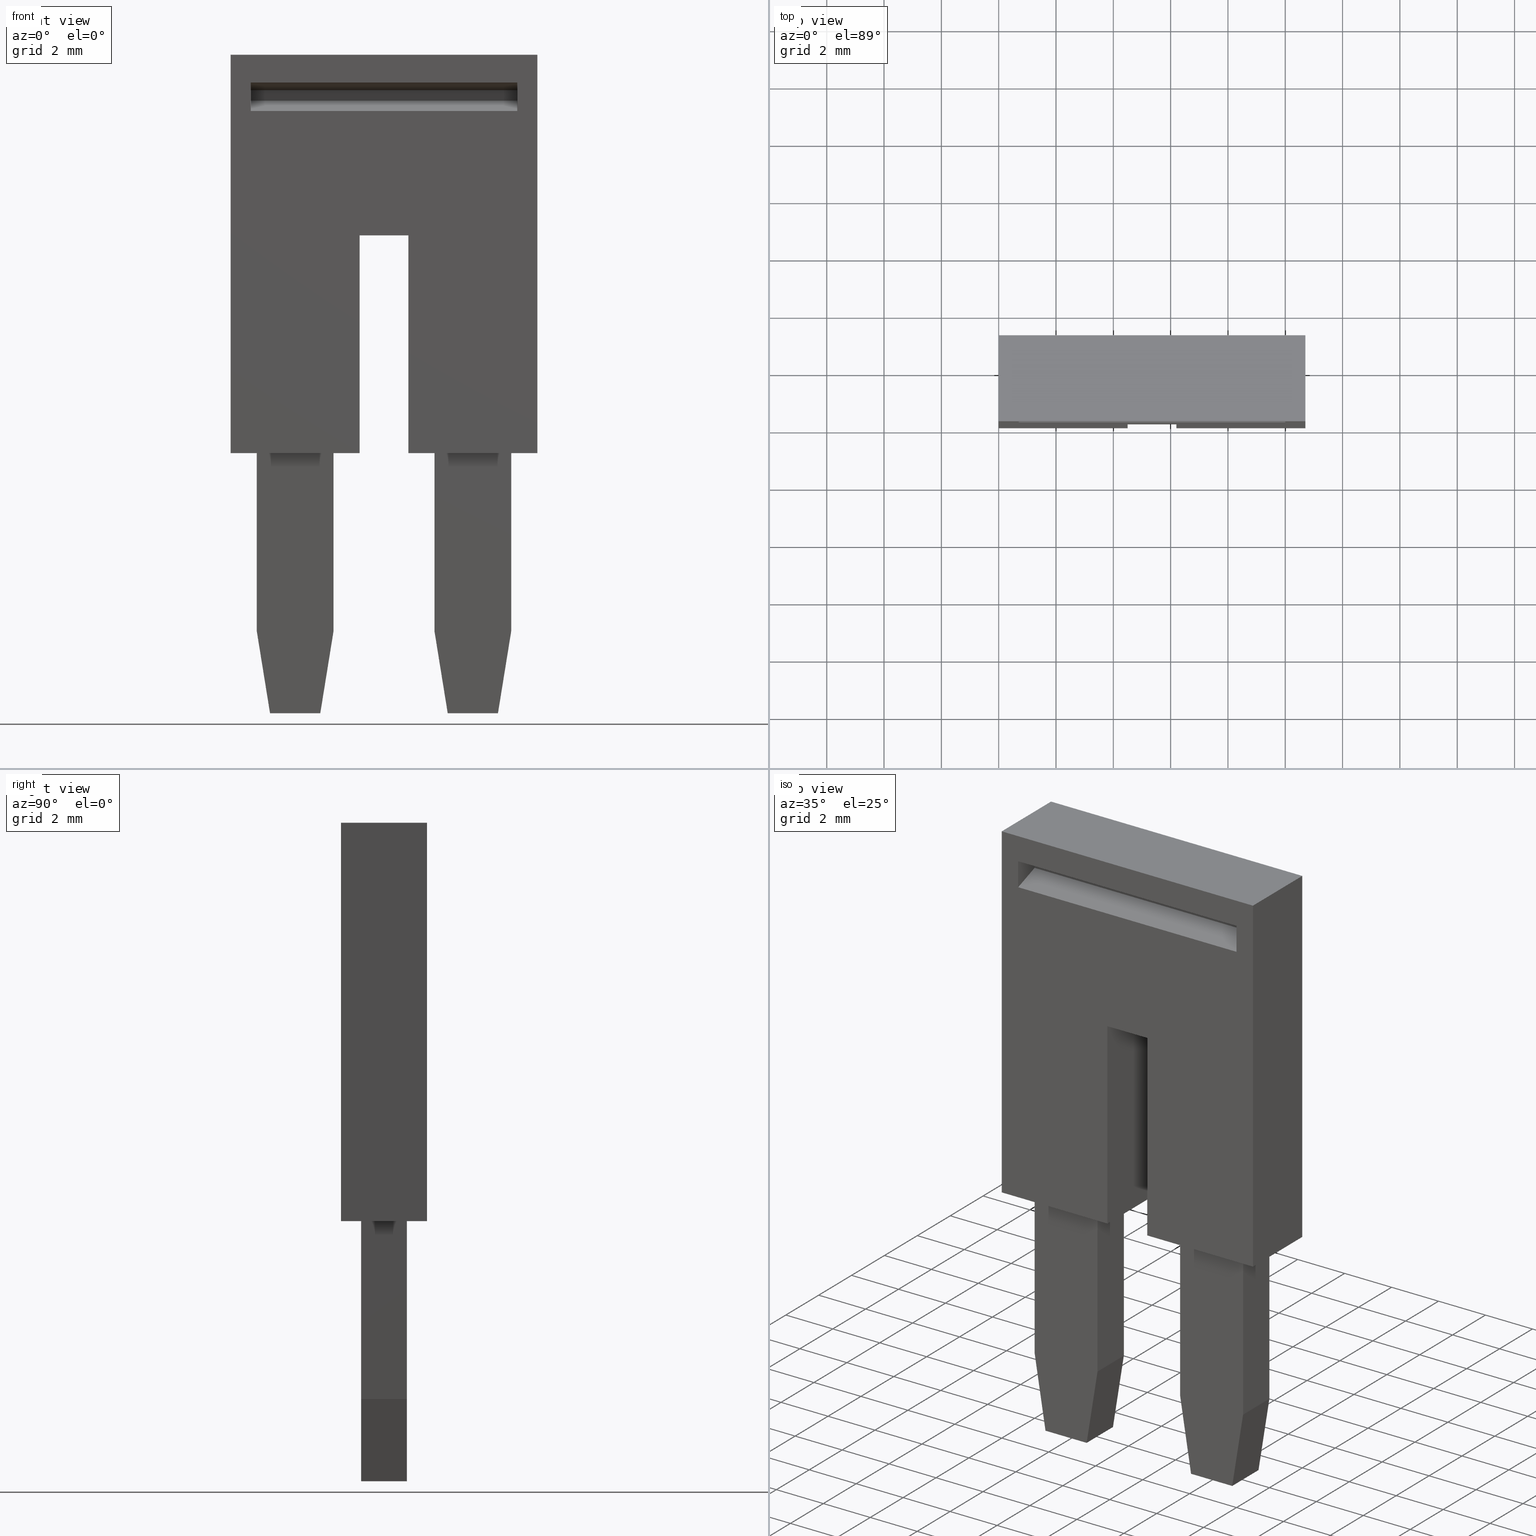
[diagram: canonical four-view strip — front | top / right | iso, engineering-drawing reading convention]
A machine part, canonical four-view strip (front | top / right | iso — engineering-drawing reading convention). The complete STEP part file that produces these views, byte-faithful:
ISO-10303-21;
HEADER;
FILE_DESCRIPTION(('Creo Elements/Direct Modeling STEP Export'),'2;1');
FILE_NAME(
'C:/temp/JobSpoolerServerData/JobServer Files/4b0d53c3-e2ca-4210-9dfb-62
9178c99f76/work/output/model.stp','2020-07-18T 0:32:50',(''),(''),
'Creo Elements/Direct Modeling STEP processor for AP214 (Solid Model)',
'Creo Elements/Direct Modeling 20.1A  29-Sep-2018 (C) Parametric Technol
ogy GmbH','');
FILE_SCHEMA(('AUTOMOTIVE_DESIGN { 1 0 10303 214 1 1 1 1 }'));
ENDSEC;
DATA;
#10=CARTESIAN_POINT('',(2.60716722168537,-7.23265100000001,
76.9999898000483));
#20=DIRECTION('',(1.,0.,0.));
#30=DIRECTION('',(0.,-1.,-6.93889390390723E-17));
#40=AXIS2_PLACEMENT_3D('',#10,#20,#30);
#50=PLANE('',#40);
#60=CARTESIAN_POINT('',(2.60716722168537,-11.1389702342699,47.074984));
#70=DIRECTION('',(0.,6.93889390390723E-17,-1.));
#80=VECTOR('',#70,1.);
#90=LINE('',#60,#80);
#100=CARTESIAN_POINT('',(2.60716722168537,-11.1389702342699,
60.0099999999988));
#110=VERTEX_POINT('',#100);
#120=CARTESIAN_POINT('',(2.60716722168537,-11.1389702342699,
50.7099999999988));
#130=VERTEX_POINT('',#120);
#140=EDGE_CURVE('',#110,#130,#90,.T.);
#150=ORIENTED_EDGE('',*,*,#140,.T.);
#160=CARTESIAN_POINT('',(2.60716722168537,-12.305124,60.0099999999988));
#170=DIRECTION('',(0.,-1.,-6.93889390390723E-17));
#180=VECTOR('',#170,1.);
#190=LINE('',#160,#180);
#200=CARTESIAN_POINT('',(2.60716722168537,-10.1410254037881,
60.0099999999988));
#210=VERTEX_POINT('',#200);
#220=EDGE_CURVE('',#210,#110,#190,.T.);
#230=ORIENTED_EDGE('',*,*,#220,.T.);
#240=CARTESIAN_POINT('',(2.60716722168537,-10.1410254037881,47.074984));
#250=DIRECTION('',(0.,-6.93889390390723E-17,1.));
#260=VECTOR('',#250,1.);
#270=LINE('',#240,#260);
#280=CARTESIAN_POINT('',(2.60716722168537,-10.1410254037881,
50.7099999999988));
#290=VERTEX_POINT('',#280);
#300=EDGE_CURVE('',#290,#210,#270,.T.);
#310=ORIENTED_EDGE('',*,*,#300,.T.);
#320=CARTESIAN_POINT('',(2.60716722168537,-12.305124,50.7099999999988));
#330=DIRECTION('',(0.,1.,6.93889390390723E-17));
#340=VECTOR('',#330,1.);
#350=LINE('',#320,#340);
#360=EDGE_CURVE('',#130,#290,#350,.T.);
#370=ORIENTED_EDGE('',*,*,#360,.T.);
#380=EDGE_LOOP('',(#370,#310,#230,#150));
#390=FACE_BOUND('',#380,.T.);
#400=CARTESIAN_POINT('',(2.60716722168538,-12.605124,60.7099999999988));
#410=DIRECTION('',(0.,1.,6.93889390390723E-17));
#420=VECTOR('',#410,1.);
#430=LINE('',#400,#420);
#440=CARTESIAN_POINT('',(2.60716722168537,-23.0750000000004,
60.7099999999988));
#450=VERTEX_POINT('',#440);
#460=CARTESIAN_POINT('',(2.60716722168537,-9.17500000000041,
60.7099999999988));
#470=VERTEX_POINT('',#460);
#480=EDGE_CURVE('',#450,#470,#430,.T.);
#490=ORIENTED_EDGE('',*,*,#480,.T.);
#500=CARTESIAN_POINT('',(2.60716722168537,-23.0750000000004,
63.6950159999975));
#510=DIRECTION('',(0.,6.93889390390723E-17,-1.));
#520=VECTOR('',#510,1.);
#530=LINE('',#500,#520);
#540=CARTESIAN_POINT('',(2.60716722168537,-23.0750000000004,
56.2099999999988));
#550=VERTEX_POINT('',#540);
#560=EDGE_CURVE('',#450,#550,#530,.T.);
#570=ORIENTED_EDGE('',*,*,#560,.F.);
#580=CARTESIAN_POINT('',(2.60716722168538,-12.605124,56.2099999999988));
#590=DIRECTION('',(0.,-1.,-6.93889390390723E-17));
#600=VECTOR('',#590,1.);
#610=LINE('',#580,#600);
#620=CARTESIAN_POINT('',(2.60716722168537,-15.4750000000004,
56.2099999999988));
#630=VERTEX_POINT('',#620);
#640=EDGE_CURVE('',#630,#550,#610,.T.);
#650=ORIENTED_EDGE('',*,*,#640,.T.);
#660=CARTESIAN_POINT('',(2.60716722168538,-15.4750000000004,
63.6450159999975));
#670=DIRECTION('',(0.,-6.93889390390723E-17,1.));
#680=VECTOR('',#670,1.);
#690=LINE('',#660,#680);
#700=CARTESIAN_POINT('',(2.60716722168537,-15.4750000000004,
54.5099999999988));
#710=VERTEX_POINT('',#700);
#720=EDGE_CURVE('',#710,#630,#690,.T.);
#730=ORIENTED_EDGE('',*,*,#720,.T.);
#740=CARTESIAN_POINT('',(2.60716722168538,-12.605124,54.5099999999988));
#750=DIRECTION('',(0.,1.,6.93889390390723E-17));
#760=VECTOR('',#750,1.);
#770=LINE('',#740,#760);
#780=CARTESIAN_POINT('',(2.60716722168537,-23.0750000000004,
54.5099999999988));
#790=VERTEX_POINT('',#780);
#800=EDGE_CURVE('',#790,#710,#770,.T.);
#810=ORIENTED_EDGE('',*,*,#800,.T.);
#820=CARTESIAN_POINT('',(2.60716722168537,-23.0750000000004,
63.6950159999975));
#830=DIRECTION('',(0.,6.93889390390723E-17,-1.));
#840=VECTOR('',#830,1.);
#850=LINE('',#820,#840);
#860=CARTESIAN_POINT('',(2.60716722168537,-23.0750000000004,
50.0099999999988));
#870=VERTEX_POINT('',#860);
#880=EDGE_CURVE('',#790,#870,#850,.T.);
#890=ORIENTED_EDGE('',*,*,#880,.F.);
#900=CARTESIAN_POINT('',(2.60716722168538,-12.605124,50.0099999999988));
#910=DIRECTION('',(0.,1.,6.93889390390723E-17));
#920=VECTOR('',#910,1.);
#930=LINE('',#900,#920);
#940=CARTESIAN_POINT('',(2.60716722168537,-9.17500000000041,
50.0099999999988));
#950=VERTEX_POINT('',#940);
#960=EDGE_CURVE('',#870,#950,#930,.T.);
#970=ORIENTED_EDGE('',*,*,#960,.F.);
#980=CARTESIAN_POINT('',(2.60716722168537,-9.17500000000041,
63.6950159999975));
#990=DIRECTION('',(0.,6.93889390390723E-17,-1.));
#1000=VECTOR('',#990,1.);
#1010=LINE('',#980,#1000);
#1020=EDGE_CURVE('',#470,#950,#1010,.T.);
#1030=ORIENTED_EDGE('',*,*,#1020,.T.);
#1040=EDGE_LOOP('',(#1030,#970,#890,#810,#730,#650,#570,#490));
#1050=FACE_OUTER_BOUND('',#1040,.T.);
#1060=ADVANCED_FACE('',(#390,#1050),#50,.F.);
#1070=COLOUR_RGB('',0.627451002597809,0.129411771893501,
0.156862750649452);
#1080=FILL_AREA_STYLE_COLOUR('',#1070);
#1090=FILL_AREA_STYLE('',(#1080));
#1100=SURFACE_STYLE_FILL_AREA(#1090);
#1110=SURFACE_SIDE_STYLE('',(#1100));
#1120=SURFACE_STYLE_USAGE(.BOTH.,#1110);
#1130=PRESENTATION_STYLE_ASSIGNMENT((#1120));
#1140=CARTESIAN_POINT('',(5.60716722168538,-9.17500000000041,
91.0099999999988));
#1150=DIRECTION('',(-8.35238971903811E-50,1.,6.93889390390723E-17));
#1160=DIRECTION('',(0.,6.93889390390723E-17,-1.));
#1170=AXIS2_PLACEMENT_3D('',#1140,#1150,#1160);
#1180=PLANE('',#1170);
#1190=CARTESIAN_POINT('',(2.60716722168539,-9.17500000000041,
60.7099999999988));
#1200=DIRECTION('',(1.,0.,1.20370621524202E-33));
#1210=VECTOR('',#1200,1.);
#1220=LINE('',#1190,#1210);
#1230=CARTESIAN_POINT('',(5.60716722168538,-9.17500000000041,
60.7099999999988));
#1240=VERTEX_POINT('',#1230);
#1250=EDGE_CURVE('',#470,#1240,#1220,.T.);
#1260=ORIENTED_EDGE('',*,*,#1250,.T.);
#1270=ORIENTED_EDGE('',*,*,#1020,.F.);
#1280=CARTESIAN_POINT('',(2.60716722168539,-9.17500000000041,
50.0099999999988));
#1290=DIRECTION('',(-1.,0.,-1.20370621524202E-33));
#1300=VECTOR('',#1290,1.);
#1310=LINE('',#1280,#1300);
#1320=CARTESIAN_POINT('',(5.60716722168538,-9.17500000000041,
50.0099999999988));
#1330=VERTEX_POINT('',#1320);
#1340=EDGE_CURVE('',#1330,#950,#1310,.T.);
#1350=ORIENTED_EDGE('',*,*,#1340,.T.);
#1360=CARTESIAN_POINT('',(5.60716722168538,-9.17500000000041,
63.6950159999975));
#1370=DIRECTION('',(0.,-6.93889390390723E-17,1.));
#1380=VECTOR('',#1370,1.);
#1390=LINE('',#1360,#1380);
#1400=EDGE_CURVE('',#1330,#1240,#1390,.T.);
#1410=ORIENTED_EDGE('',*,*,#1400,.F.);
#1420=EDGE_LOOP('',(#1410,#1350,#1270,#1260));
#1430=FACE_OUTER_BOUND('',#1420,.T.);
#1440=ADVANCED_FACE('',(#1430),#1180,.T.);
#1450=COLOUR_RGB('',0.627451002597809,0.129411771893501,
0.156862750649452);
#1460=FILL_AREA_STYLE_COLOUR('',#1450);
#1470=FILL_AREA_STYLE('',(#1460));
#1480=SURFACE_STYLE_FILL_AREA(#1470);
#1490=SURFACE_SIDE_STYLE('',(#1480));
#1500=SURFACE_STYLE_USAGE(.BOTH.,#1490);
#1510=PRESENTATION_STYLE_ASSIGNMENT((#1500));
#1520=CARTESIAN_POINT('',(5.60716722168538,-10.416373989214,
63.7755163824959));
#1530=DIRECTION('',(1.,0.,0.));
#1540=DIRECTION('',(0.,-1.,-6.93889390390723E-17));
#1550=AXIS2_PLACEMENT_3D('',#1520,#1530,#1540);
#1560=PLANE('',#1550);
#1570=CARTESIAN_POINT('',(5.60716722168538,-10.1410254037881,47.074984))
;
#1580=DIRECTION('',(0.,-6.93889390390723E-17,1.));
#1590=VECTOR('',#1580,1.);
#1600=LINE('',#1570,#1590);
#1610=CARTESIAN_POINT('',(5.60716722168538,-10.1410254037881,
50.7099999999988));
#1620=VERTEX_POINT('',#1610);
#1630=CARTESIAN_POINT('',(5.60716722168538,-10.1410254037881,
60.0099999999988));
#1640=VERTEX_POINT('',#1630);
#1650=EDGE_CURVE('',#1620,#1640,#1600,.T.);
#1660=ORIENTED_EDGE('',*,*,#1650,.F.);
#1670=CARTESIAN_POINT('',(5.60716722168538,-12.305124,60.0099999999988))
;
#1680=DIRECTION('',(0.,-1.,-6.93889390390723E-17));
#1690=VECTOR('',#1680,1.);
#1700=LINE('',#1670,#1690);
#1710=CARTESIAN_POINT('',(5.60716722168538,-11.1389702342699,
60.0099999999988));
#1720=VERTEX_POINT('',#1710);
#1730=EDGE_CURVE('',#1640,#1720,#1700,.T.);
#1740=ORIENTED_EDGE('',*,*,#1730,.F.);
#1750=CARTESIAN_POINT('',(5.60716722168538,-11.1389702342699,47.074984))
;
#1760=DIRECTION('',(0.,6.93889390390723E-17,-1.));
#1770=VECTOR('',#1760,1.);
#1780=LINE('',#1750,#1770);
#1790=CARTESIAN_POINT('',(5.60716722168538,-11.1389702342699,
50.7099999999988));
#1800=VERTEX_POINT('',#1790);
#1810=EDGE_CURVE('',#1720,#1800,#1780,.T.);
#1820=ORIENTED_EDGE('',*,*,#1810,.F.);
#1830=CARTESIAN_POINT('',(5.60716722168538,-12.305124,50.7099999999988))
;
#1840=DIRECTION('',(0.,1.,6.93889390390723E-17));
#1850=VECTOR('',#1840,1.);
#1860=LINE('',#1830,#1850);
#1870=EDGE_CURVE('',#1800,#1620,#1860,.T.);
#1880=ORIENTED_EDGE('',*,*,#1870,.F.);
#1890=EDGE_LOOP('',(#1880,#1820,#1740,#1660));
#1900=FACE_BOUND('',#1890,.T.);
#1910=CARTESIAN_POINT('',(5.60716722168538,-12.605124,50.0099999999988))
;
#1920=DIRECTION('',(0.,1.,6.93889390390723E-17));
#1930=VECTOR('',#1920,1.);
#1940=LINE('',#1910,#1930);
#1950=CARTESIAN_POINT('',(5.60716722168538,-23.0750000000004,
50.0099999999988));
#1960=VERTEX_POINT('',#1950);
#1970=EDGE_CURVE('',#1960,#1330,#1940,.T.);
#1980=ORIENTED_EDGE('',*,*,#1970,.T.);
#1990=CARTESIAN_POINT('',(5.60716722168538,-23.0750000000004,
63.6950159999975));
#2000=DIRECTION('',(0.,6.93889390390723E-17,-1.));
#2010=VECTOR('',#2000,1.);
#2020=LINE('',#1990,#2010);
#2030=CARTESIAN_POINT('',(5.60716722168538,-23.0750000000004,
54.5099999999988));
#2040=VERTEX_POINT('',#2030);
#2050=EDGE_CURVE('',#2040,#1960,#2020,.T.);
#2060=ORIENTED_EDGE('',*,*,#2050,.T.);
#2070=CARTESIAN_POINT('',(5.60716722168538,-12.605124,54.5099999999988))
;
#2080=DIRECTION('',(0.,1.,6.93889390390723E-17));
#2090=VECTOR('',#2080,1.);
#2100=LINE('',#2070,#2090);
#2110=CARTESIAN_POINT('',(5.60716722168538,-15.4750000000004,
54.5099999999988));
#2120=VERTEX_POINT('',#2110);
#2130=EDGE_CURVE('',#2040,#2120,#2100,.T.);
#2140=ORIENTED_EDGE('',*,*,#2130,.F.);
#2150=CARTESIAN_POINT('',(5.60716722168538,-15.4750000000004,
63.6450159999975));
#2160=DIRECTION('',(0.,-6.93889390390723E-17,1.));
#2170=VECTOR('',#2160,1.);
#2180=LINE('',#2150,#2170);
#2190=CARTESIAN_POINT('',(5.60716722168538,-15.4750000000004,
56.2099999999988));
#2200=VERTEX_POINT('',#2190);
#2210=EDGE_CURVE('',#2120,#2200,#2180,.T.);
#2220=ORIENTED_EDGE('',*,*,#2210,.F.);
#2230=CARTESIAN_POINT('',(5.60716722168538,-12.605124,56.2099999999988))
;
#2240=DIRECTION('',(0.,-1.,-6.93889390390723E-17));
#2250=VECTOR('',#2240,1.);
#2260=LINE('',#2230,#2250);
#2270=CARTESIAN_POINT('',(5.60716722168538,-23.0750000000004,
56.2099999999988));
#2280=VERTEX_POINT('',#2270);
#2290=EDGE_CURVE('',#2200,#2280,#2260,.T.);
#2300=ORIENTED_EDGE('',*,*,#2290,.F.);
#2310=CARTESIAN_POINT('',(5.60716722168538,-23.0750000000004,
63.6950159999975));
#2320=DIRECTION('',(0.,6.93889390390723E-17,-1.));
#2330=VECTOR('',#2320,1.);
#2340=LINE('',#2310,#2330);
#2350=CARTESIAN_POINT('',(5.60716722168538,-23.0750000000004,
60.7099999999988));
#2360=VERTEX_POINT('',#2350);
#2370=EDGE_CURVE('',#2360,#2280,#2340,.T.);
#2380=ORIENTED_EDGE('',*,*,#2370,.T.);
#2390=CARTESIAN_POINT('',(5.60716722168538,-12.605124,60.7099999999988))
;
#2400=DIRECTION('',(0.,1.,6.93889390390723E-17));
#2410=VECTOR('',#2400,1.);
#2420=LINE('',#2390,#2410);
#2430=EDGE_CURVE('',#2360,#1240,#2420,.T.);
#2440=ORIENTED_EDGE('',*,*,#2430,.F.);
#2450=ORIENTED_EDGE('',*,*,#1400,.T.);
#2460=EDGE_LOOP('',(#2450,#2440,#2380,#2300,#2220,#2140,#2060,#1980));
#2470=FACE_OUTER_BOUND('',#2460,.T.);
#2480=ADVANCED_FACE('',(#1900,#2470),#1560,.T.);
#2490=COLOUR_RGB('',0.627451002597809,0.129411771893501,
0.156862750649452);
#2500=FILL_AREA_STYLE_COLOUR('',#2490);
#2510=FILL_AREA_STYLE('',(#2500));
#2520=SURFACE_STYLE_FILL_AREA(#2510);
#2530=SURFACE_SIDE_STYLE('',(#2520));
#2540=SURFACE_STYLE_USAGE(.BOTH.,#2530);
#2550=PRESENTATION_STYLE_ASSIGNMENT((#2540));
#2560=CARTESIAN_POINT('',(3.21402809924107,-15.4750000000004,
61.386056195176));
#2570=DIRECTION('',(8.35238971903811E-50,-1.,-6.93889390390723E-17));
#2580=DIRECTION('',(-1.,0.,-1.20370621524202E-33));
#2590=AXIS2_PLACEMENT_3D('',#2560,#2570,#2580);
#2600=PLANE('',#2590);
#2610=ORIENTED_EDGE('',*,*,#2210,.T.);
#2620=CARTESIAN_POINT('',(2.60716722168539,-15.4750000000004,
54.5099999999988));
#2630=DIRECTION('',(-1.,0.,-1.20370621524202E-33));
#2640=VECTOR('',#2630,1.);
#2650=LINE('',#2620,#2640);
#2660=EDGE_CURVE('',#2120,#710,#2650,.T.);
#2670=ORIENTED_EDGE('',*,*,#2660,.F.);
#2680=ORIENTED_EDGE('',*,*,#720,.F.);
#2690=CARTESIAN_POINT('',(2.60716722168539,-15.4750000000004,
56.2099999999988));
#2700=DIRECTION('',(1.,0.,1.20370621524202E-33));
#2710=VECTOR('',#2700,1.);
#2720=LINE('',#2690,#2710);
#2730=EDGE_CURVE('',#630,#2200,#2720,.T.);
#2740=ORIENTED_EDGE('',*,*,#2730,.F.);
#2750=EDGE_LOOP('',(#2740,#2680,#2670,#2610));
#2760=FACE_OUTER_BOUND('',#2750,.T.);
#2770=ADVANCED_FACE('',(#2760),#2600,.T.);
#2780=COLOUR_RGB('',0.627451002597809,0.129411771893501,
0.156862750649452);
#2790=FILL_AREA_STYLE_COLOUR('',#2780);
#2800=FILL_AREA_STYLE('',(#2790));
#2810=SURFACE_STYLE_FILL_AREA(#2800);
#2820=SURFACE_SIDE_STYLE('',(#2810));
#2830=SURFACE_STYLE_USAGE(.BOTH.,#2820);
#2840=PRESENTATION_STYLE_ASSIGNMENT((#2830));
#2850=CARTESIAN_POINT('',(2.60716722168539,-15.4750000000004,
56.2099999999988));
#2860=DIRECTION('',(1.20370621524202E-33,6.93889390390723E-17,-1.));
#2870=DIRECTION('',(0.,1.,6.93889390390723E-17));
#2880=AXIS2_PLACEMENT_3D('',#2850,#2860,#2870);
#2890=PLANE('',#2880);
#2900=CARTESIAN_POINT('',(2.60716722168538,-23.0750000000004,
56.2099999999988));
#2910=DIRECTION('',(-1.,0.,-1.20370621524202E-33));
#2920=VECTOR('',#2910,1.);
#2930=LINE('',#2900,#2920);
#2940=EDGE_CURVE('',#2280,#550,#2930,.T.);
#2950=ORIENTED_EDGE('',*,*,#2940,.T.);
#2960=ORIENTED_EDGE('',*,*,#2290,.T.);
#2970=ORIENTED_EDGE('',*,*,#2730,.T.);
#2980=ORIENTED_EDGE('',*,*,#640,.F.);
#2990=EDGE_LOOP('',(#2980,#2970,#2960,#2950));
#3000=FACE_OUTER_BOUND('',#2990,.T.);
#3010=ADVANCED_FACE('',(#3000),#2890,.T.);
#3020=COLOUR_RGB('',0.627451002597809,0.129411771893501,
0.156862750649452);
#3030=FILL_AREA_STYLE_COLOUR('',#3020);
#3040=FILL_AREA_STYLE('',(#3030));
#3050=SURFACE_STYLE_FILL_AREA(#3040);
#3060=SURFACE_SIDE_STYLE('',(#3050));
#3070=SURFACE_STYLE_USAGE(.BOTH.,#3060);
#3080=PRESENTATION_STYLE_ASSIGNMENT((#3070));
#3090=CARTESIAN_POINT('',(4.28576854106651,-14.1209712127694,
50.0099999999988));
#3100=DIRECTION('',(-1.20370621524202E-33,-6.93889390390723E-17,1.));
#3110=DIRECTION('',(1.,0.,1.20370621524202E-33));
#3120=AXIS2_PLACEMENT_3D('',#3090,#3100,#3110);
#3130=PLANE('',#3120);
#3140=ORIENTED_EDGE('',*,*,#960,.T.);
#3150=CARTESIAN_POINT('',(2.60716722168538,-23.0750000000004,
50.0099999999988));
#3160=DIRECTION('',(1.,0.,1.20370621524202E-33));
#3170=VECTOR('',#3160,1.);
#3180=LINE('',#3150,#3170);
#3190=EDGE_CURVE('',#870,#1960,#3180,.T.);
#3200=ORIENTED_EDGE('',*,*,#3190,.F.);
#3210=ORIENTED_EDGE('',*,*,#1970,.F.);
#3220=ORIENTED_EDGE('',*,*,#1340,.F.);
#3230=EDGE_LOOP('',(#3220,#3210,#3200,#3140));
#3240=FACE_OUTER_BOUND('',#3230,.T.);
#3250=ADVANCED_FACE('',(#3240),#3130,.F.);
#3260=COLOUR_RGB('',0.627451002597809,0.129411771893501,
0.156862750649452);
#3270=FILL_AREA_STYLE_COLOUR('',#3260);
#3280=FILL_AREA_STYLE('',(#3270));
#3290=SURFACE_STYLE_FILL_AREA(#3280);
#3300=SURFACE_SIDE_STYLE('',(#3290));
#3310=SURFACE_STYLE_USAGE(.BOTH.,#3300);
#3320=PRESENTATION_STYLE_ASSIGNMENT((#3310));
#3330=CARTESIAN_POINT('',(4.90716722167563,-23.0750000000004,
53.8599999999994));
#3340=DIRECTION('',(8.35238971903811E-50,-1.,-6.93889390390723E-17));
#3350=DIRECTION('',(0.,6.93889390390723E-17,-1.));
#3360=AXIS2_PLACEMENT_3D('',#3330,#3340,#3350);
#3370=PLANE('',#3360);
#3380=CARTESIAN_POINT('',(2.60716722168538,-23.0750000000004,
53.5999999994275));
#3390=DIRECTION('',(1.,-3.74380860162795E-42,5.39539692780682E-26));
#3400=VECTOR('',#3390,1.);
#3410=LINE('',#3380,#3400);
#3420=CARTESIAN_POINT('',(3.30716722167563,-23.0750000000004,
53.5999999994275));
#3430=VERTEX_POINT('',#3420);
#3440=CARTESIAN_POINT('',(4.90716722167563,-23.0750000000004,
53.5999999994275));
#3450=VERTEX_POINT('',#3440);
#3460=EDGE_CURVE('',#3430,#3450,#3410,.T.);
#3470=ORIENTED_EDGE('',*,*,#3460,.T.);
#3480=CARTESIAN_POINT('',(3.30716722167563,-23.0750000000004,
63.6950159999975));
#3490=DIRECTION('',(-7.49879891330929E-33,-6.93889390390723E-17,1.));
#3500=VECTOR('',#3490,1.);
#3510=LINE('',#3480,#3500);
#3520=CARTESIAN_POINT('',(3.30716722167563,-23.0750000000004,
50.9199999992303));
#3530=VERTEX_POINT('',#3520);
#3540=EDGE_CURVE('',#3530,#3430,#3510,.T.);
#3550=ORIENTED_EDGE('',*,*,#3540,.T.);
#3560=CARTESIAN_POINT('',(2.60716722168538,-23.0750000000004,
50.9199999992303));
#3570=DIRECTION('',(-1.,1.87110098659717E-42,-2.69654082629433E-26));
#3580=VECTOR('',#3570,1.);
#3590=LINE('',#3560,#3580);
#3600=CARTESIAN_POINT('',(4.90716722167563,-23.0750000000004,
50.9199999992303));
#3610=VERTEX_POINT('',#3600);
#3620=EDGE_CURVE('',#3610,#3530,#3590,.T.);
#3630=ORIENTED_EDGE('',*,*,#3620,.T.);
#3640=CARTESIAN_POINT('',(4.90716722167563,-23.0750000000004,
63.6950159999975));
#3650=DIRECTION('',(-7.49879891330929E-33,-6.93889390390723E-17,1.));
#3660=VECTOR('',#3650,1.);
#3670=LINE('',#3640,#3660);
#3680=EDGE_CURVE('',#3610,#3450,#3670,.T.);
#3690=ORIENTED_EDGE('',*,*,#3680,.F.);
#3700=EDGE_LOOP('',(#3690,#3630,#3550,#3470));
#3710=FACE_BOUND('',#3700,.T.);
#3720=ORIENTED_EDGE('',*,*,#880,.T.);
#3730=CARTESIAN_POINT('',(2.60716722168538,-23.0750000000004,
54.5099999999988));
#3740=DIRECTION('',(1.,0.,1.20370621524202E-33));
#3750=VECTOR('',#3740,1.);
#3760=LINE('',#3730,#3750);
#3770=EDGE_CURVE('',#790,#2040,#3760,.T.);
#3780=ORIENTED_EDGE('',*,*,#3770,.F.);
#3790=ORIENTED_EDGE('',*,*,#2050,.F.);
#3800=ORIENTED_EDGE('',*,*,#3190,.T.);
#3810=EDGE_LOOP('',(#3800,#3790,#3780,#3720));
#3820=FACE_OUTER_BOUND('',#3810,.T.);
#3830=ADVANCED_FACE('',(#3710,#3820),#3370,.T.);
#3840=COLOUR_RGB('',0.627451002597809,0.129411771893501,
0.156862750649452);
#3850=FILL_AREA_STYLE_COLOUR('',#3840);
#3860=FILL_AREA_STYLE('',(#3850));
#3870=SURFACE_STYLE_FILL_AREA(#3860);
#3880=SURFACE_SIDE_STYLE('',(#3870));
#3890=SURFACE_STYLE_USAGE(.BOTH.,#3880);
#3900=PRESENTATION_STYLE_ASSIGNMENT((#3890));
#3910=CARTESIAN_POINT('',(3.01698249421054,-16.2920214897594,
60.7099999999988));
#3920=DIRECTION('',(-1.20370621524202E-33,-6.93889390390723E-17,1.));
#3930=DIRECTION('',(1.,0.,1.20370621524202E-33));
#3940=AXIS2_PLACEMENT_3D('',#3910,#3920,#3930);
#3950=PLANE('',#3940);
#3960=ORIENTED_EDGE('',*,*,#1250,.F.);
#3970=ORIENTED_EDGE('',*,*,#2430,.T.);
#3980=CARTESIAN_POINT('',(2.60716722168538,-23.0750000000004,
60.7099999999988));
#3990=DIRECTION('',(1.,0.,1.20370621524202E-33));
#4000=VECTOR('',#3990,1.);
#4010=LINE('',#3980,#4000);
#4020=EDGE_CURVE('',#450,#2360,#4010,.T.);
#4030=ORIENTED_EDGE('',*,*,#4020,.T.);
#4040=ORIENTED_EDGE('',*,*,#480,.F.);
#4050=EDGE_LOOP('',(#4040,#4030,#3970,#3960));
#4060=FACE_OUTER_BOUND('',#4050,.T.);
#4070=ADVANCED_FACE('',(#4060),#3950,.T.);
#4080=COLOUR_RGB('',0.627451002597809,0.129411771893501,
0.156862750649452);
#4090=FILL_AREA_STYLE_COLOUR('',#4080);
#4100=FILL_AREA_STYLE('',(#4090));
#4110=SURFACE_STYLE_FILL_AREA(#4100);
#4120=SURFACE_SIDE_STYLE('',(#4110));
#4130=SURFACE_STYLE_USAGE(.BOTH.,#4120);
#4140=PRESENTATION_STYLE_ASSIGNMENT((#4130));
#4150=CARTESIAN_POINT('',(4.90716722167563,-23.0750000000004,
59.7099999999994));
#4160=DIRECTION('',(8.35238971903811E-50,-1.,-6.93889390390723E-17));
#4170=DIRECTION('',(0.,6.93889390390723E-17,-1.));
#4180=AXIS2_PLACEMENT_3D('',#4150,#4160,#4170);
#4190=PLANE('',#4180);
#4200=CARTESIAN_POINT('',(2.60716722168538,-23.0750000000004,
57.1199999990321));
#4210=DIRECTION('',(-1.,1.08709415017381E-48,-1.68703840060881E-32));
#4220=VECTOR('',#4210,1.);
#4230=LINE('',#4200,#4220);
#4240=CARTESIAN_POINT('',(4.90716722167563,-23.0750000000004,
57.1199999990321));
#4250=VERTEX_POINT('',#4240);
#4260=CARTESIAN_POINT('',(3.30716722167563,-23.0750000000004,
57.1199999990321));
#4270=VERTEX_POINT('',#4260);
#4280=EDGE_CURVE('',#4250,#4270,#4230,.T.);
#4290=ORIENTED_EDGE('',*,*,#4280,.T.);
#4300=CARTESIAN_POINT('',(4.90716722167563,-23.0750000000004,
63.6950159999975));
#4310=DIRECTION('',(-7.49879891330929E-33,-6.93889390390723E-17,1.));
#4320=VECTOR('',#4310,1.);
#4330=LINE('',#4300,#4320);
#4340=CARTESIAN_POINT('',(4.90716722167563,-23.0750000000004,
59.7999999999995));
#4350=VERTEX_POINT('',#4340);
#4360=EDGE_CURVE('',#4250,#4350,#4330,.T.);
#4370=ORIENTED_EDGE('',*,*,#4360,.F.);
#4380=CARTESIAN_POINT('',(2.60716722168538,-23.0750000000004,
59.7999999999995));
#4390=DIRECTION('',(1.,-1.04066740132376E-48,1.62013040418606E-32));
#4400=VECTOR('',#4390,1.);
#4410=LINE('',#4380,#4400);
#4420=CARTESIAN_POINT('',(3.30716722167563,-23.0750000000004,
59.7999999999995));
#4430=VERTEX_POINT('',#4420);
#4440=EDGE_CURVE('',#4430,#4350,#4410,.T.);
#4450=ORIENTED_EDGE('',*,*,#4440,.T.);
#4460=CARTESIAN_POINT('',(3.30716722167563,-23.0750000000004,
63.6950159999975));
#4470=DIRECTION('',(-7.49879891330929E-33,-6.93889390390723E-17,1.));
#4480=VECTOR('',#4470,1.);
#4490=LINE('',#4460,#4480);
#4500=EDGE_CURVE('',#4270,#4430,#4490,.T.);
#4510=ORIENTED_EDGE('',*,*,#4500,.T.);
#4520=EDGE_LOOP('',(#4510,#4450,#4370,#4290));
#4530=FACE_BOUND('',#4520,.T.);
#4540=ORIENTED_EDGE('',*,*,#2370,.F.);
#4550=ORIENTED_EDGE('',*,*,#2940,.F.);
#4560=ORIENTED_EDGE('',*,*,#560,.T.);
#4570=ORIENTED_EDGE('',*,*,#4020,.F.);
#4580=EDGE_LOOP('',(#4570,#4560,#4550,#4540));
#4590=FACE_OUTER_BOUND('',#4580,.T.);
#4600=ADVANCED_FACE('',(#4530,#4590),#4190,.T.);
#4610=COLOUR_RGB('',0.627451002597809,0.129411771893501,
0.156862750649452);
#4620=FILL_AREA_STYLE_COLOUR('',#4610);
#4630=FILL_AREA_STYLE('',(#4620));
#4640=SURFACE_STYLE_FILL_AREA(#4630);
#4650=SURFACE_SIDE_STYLE('',(#4640));
#4660=SURFACE_STYLE_USAGE(.BOTH.,#4650);
#4670=PRESENTATION_STYLE_ASSIGNMENT((#4660));
#4680=CARTESIAN_POINT('',(2.60716722168539,-22.8750000000004,
54.5099999999988));
#4690=DIRECTION('',(-1.20370621524202E-33,-6.93889390390723E-17,1.));
#4700=DIRECTION('',(0.,-1.,-6.93889390390723E-17));
#4710=AXIS2_PLACEMENT_3D('',#4680,#4690,#4700);
#4720=PLANE('',#4710);
#4730=ORIENTED_EDGE('',*,*,#2660,.T.);
#4740=ORIENTED_EDGE('',*,*,#2130,.T.);
#4750=ORIENTED_EDGE('',*,*,#3770,.T.);
#4760=ORIENTED_EDGE('',*,*,#800,.F.);
#4770=EDGE_LOOP('',(#4760,#4750,#4740,#4730));
#4780=FACE_OUTER_BOUND('',#4770,.T.);
#4790=ADVANCED_FACE('',(#4780),#4720,.T.);
#4800=COLOUR_RGB('',0.627451002597809,0.129411771893501,
0.156862750649452);
#4810=FILL_AREA_STYLE_COLOUR('',#4800);
#4820=FILL_AREA_STYLE('',(#4810));
#4830=SURFACE_STYLE_FILL_AREA(#4820);
#4840=SURFACE_SIDE_STYLE('',(#4830));
#4850=SURFACE_STYLE_USAGE(.BOTH.,#4840);
#4860=PRESENTATION_STYLE_ASSIGNMENT((#4850));
#4870=CARTESIAN_POINT('',(3.30716722167563,-13.2749999999892,
55.3599999999975));
#4880=DIRECTION('',(1.,-1.22464679914735E-16,-9.9889529573378E-34));
#4890=DIRECTION('',(3.24995180878775E-33,3.46944695195361E-17,-1.));
#4900=AXIS2_PLACEMENT_3D('',#4870,#4880,#4890);
#4910=PLANE('',#4900);
#4920=CARTESIAN_POINT('',(3.30716722167563,-12.305124,62.5404020769665))
;
#4930=DIRECTION('',(1.11022302462516E-16,0.987219178105449,
0.159368423411924));
#4940=VECTOR('',#4930,1.);
#4950=LINE('',#4920,#4940);
#4960=CARTESIAN_POINT('',(3.30716722167563,-32.1500000022918,
59.3368109480343));
#4970=VERTEX_POINT('',#4960);
#4980=CARTESIAN_POINT('',(3.30716722167563,-29.2807420564654,
59.7999999999995));
#4990=VERTEX_POINT('',#4980);
#5000=EDGE_CURVE('',#4970,#4990,#4950,.T.);
#5010=ORIENTED_EDGE('',*,*,#5000,.T.);
#5020=CARTESIAN_POINT('',(3.30716722167563,-32.1500000022859,
56.2597341592157));
#5030=DIRECTION('',(1.77600958983933E-29,1.45030345125264E-13,-1.));
#5040=VECTOR('',#5030,1.);
#5050=LINE('',#5020,#5040);
#5060=CARTESIAN_POINT('',(3.30716722167563,-32.1500000022915,
57.5831890519593));
#5070=VERTEX_POINT('',#5060);
#5080=EDGE_CURVE('',#4970,#5070,#5050,.T.);
#5090=ORIENTED_EDGE('',*,*,#5080,.F.);
#5100=CARTESIAN_POINT('',(3.30716722167563,-12.305124,54.3795979230271))
;
#5110=DIRECTION('',(1.11022302462516E-16,0.987219178105449,
-0.159368423411924));
#5120=VECTOR('',#5110,1.);
#5130=LINE('',#5100,#5120);
#5140=CARTESIAN_POINT('',(3.30716722167563,-29.2807420505056,
57.1199999990321));
#5150=VERTEX_POINT('',#5140);
#5160=EDGE_CURVE('',#5070,#5150,#5130,.T.);
#5170=ORIENTED_EDGE('',*,*,#5160,.F.);
#5180=CARTESIAN_POINT('',(3.30716722167563,-23.974999320925,
57.1199999990321));
#5190=DIRECTION('',(1.22464679914735E-16,1.,1.36084731517553E-16));
#5200=VECTOR('',#5190,1.);
#5210=LINE('',#5180,#5200);
#5220=EDGE_CURVE('',#5150,#4270,#5210,.T.);
#5230=ORIENTED_EDGE('',*,*,#5220,.F.);
#5240=ORIENTED_EDGE('',*,*,#4500,.F.);
#5250=CARTESIAN_POINT('',(3.30716722167563,-12.305124,59.7999999999995))
;
#5260=DIRECTION('',(1.22464679914735E-16,1.,1.3062127899644E-16));
#5270=VECTOR('',#5260,1.);
#5280=LINE('',#5250,#5270);
#5290=EDGE_CURVE('',#4990,#4430,#5280,.T.);
#5300=ORIENTED_EDGE('',*,*,#5290,.T.);
#5310=EDGE_LOOP('',(#5300,#5240,#5230,#5170,#5090,#5010));
#5320=FACE_OUTER_BOUND('',#5310,.T.);
#5330=ADVANCED_FACE('',(#5320),#4910,.F.);
#5340=COLOUR_RGB('',0.823529481887817,0.823529481887817,
0.784313797950745);
#5350=FILL_AREA_STYLE_COLOUR('',#5340);
#5360=FILL_AREA_STYLE('',(#5350));
#5370=SURFACE_STYLE_FILL_AREA(#5360);
#5380=SURFACE_SIDE_STYLE('',(#5370));
#5390=SURFACE_STYLE_USAGE(.BOTH.,#5380);
#5400=PRESENTATION_STYLE_ASSIGNMENT((#5390));
#5410=CARTESIAN_POINT('',(4.90716722167563,-29.3585221271369,
50.9325561653422));
#5420=DIRECTION('',(1.95170029616572E-17,0.159368423411924,
0.987219178105449));
#5430=DIRECTION('',(1.20899480652372E-16,0.987219178105449,
-0.159368423411924));
#5440=AXIS2_PLACEMENT_3D('',#5410,#5420,#5430);
#5450=PLANE('',#5440);
#5460=CARTESIAN_POINT('',(4.90716722167563,-12.305124,48.1795979230264))
;
#5470=DIRECTION('',(1.11022302462516E-16,0.987219178105449,
-0.159368423411924));
#5480=VECTOR('',#5470,1.);
#5490=LINE('',#5460,#5480);
#5500=CARTESIAN_POINT('',(4.90716722167563,-32.1500000022959,
51.3831890519593));
#5510=VERTEX_POINT('',#5500);
#5520=CARTESIAN_POINT('',(4.90716722167563,-29.2807420432734,
50.9199999978638));
#5530=VERTEX_POINT('',#5520);
#5540=EDGE_CURVE('',#5510,#5530,#5490,.T.);
#5550=ORIENTED_EDGE('',*,*,#5540,.F.);
#5560=CARTESIAN_POINT('',(5.60716722168535,-29.2807420432734,
50.9199999978638));
#5570=DIRECTION('',(1.,-1.22464679914735E-16,0.));
#5580=VECTOR('',#5570,1.);
#5590=LINE('',#5560,#5580);
#5600=CARTESIAN_POINT('',(3.30716722167563,-29.2807420432734,
50.9199999978638));
#5610=VERTEX_POINT('',#5600);
#5620=EDGE_CURVE('',#5610,#5530,#5590,.T.);
#5630=ORIENTED_EDGE('',*,*,#5620,.T.);
#5640=CARTESIAN_POINT('',(3.30716722167563,-12.305124,48.1795979230264))
;
#5650=DIRECTION('',(1.11022302462516E-16,0.987219178105449,
-0.159368423411924));
#5660=VECTOR('',#5650,1.);
#5670=LINE('',#5640,#5660);
#5680=CARTESIAN_POINT('',(3.30716722167563,-32.150000002296,
51.3831890519593));
#5690=VERTEX_POINT('',#5680);
#5700=EDGE_CURVE('',#5690,#5610,#5670,.T.);
#5710=ORIENTED_EDGE('',*,*,#5700,.T.);
#5720=CARTESIAN_POINT('',(2.60716722168538,-32.1500000022959,
51.3831890519593));
#5730=DIRECTION('',(1.,-1.22464679914735E-16,-7.29398799380104E-33));
#5740=VECTOR('',#5730,1.);
#5750=LINE('',#5720,#5740);
#5760=EDGE_CURVE('',#5690,#5510,#5750,.T.);
#5770=ORIENTED_EDGE('',*,*,#5760,.F.);
#5780=EDGE_LOOP('',(#5770,#5710,#5630,#5550));
#5790=FACE_OUTER_BOUND('',#5780,.T.);
#5800=ADVANCED_FACE('',(#5790),#5450,.F.);
#5810=COLOUR_RGB('',0.823529481887817,0.823529481887817,
0.784313797950745);
#5820=FILL_AREA_STYLE_COLOUR('',#5810);
#5830=FILL_AREA_STYLE('',(#5820));
#5840=SURFACE_STYLE_FILL_AREA(#5830);
#5850=SURFACE_SIDE_STYLE('',(#5840));
#5860=SURFACE_STYLE_USAGE(.BOTH.,#5850);
#5870=PRESENTATION_STYLE_ASSIGNMENT((#5860));
#5880=CARTESIAN_POINT('',(4.90716722167563,-13.2749999999892,
55.3599999999975));
#5890=DIRECTION('',(1.,-1.22464679914735E-16,-9.9889529573378E-34));
#5900=DIRECTION('',(3.24995180878775E-33,3.46944695195361E-17,-1.));
#5910=AXIS2_PLACEMENT_3D('',#5880,#5890,#5900);
#5920=PLANE('',#5910);
#5930=ORIENTED_EDGE('',*,*,#4360,.T.);
#5940=CARTESIAN_POINT('',(4.90716722167563,-12.305124,57.1199999990321))
;
#5950=DIRECTION('',(-1.22464679914735E-16,-1.,-1.36084731517553E-16));
#5960=VECTOR('',#5950,1.);
#5970=LINE('',#5940,#5960);
#5980=CARTESIAN_POINT('',(4.90716722167563,-29.2807420505056,
57.1199999990321));
#5990=VERTEX_POINT('',#5980);
#6000=EDGE_CURVE('',#4250,#5990,#5970,.T.);
#6010=ORIENTED_EDGE('',*,*,#6000,.F.);
#6020=CARTESIAN_POINT('',(4.90716722167563,-12.305124,54.3795979230271))
;
#6030=DIRECTION('',(1.11022302462516E-16,0.987219178105449,
-0.159368423411924));
#6040=VECTOR('',#6030,1.);
#6050=LINE('',#6020,#6040);
#6060=CARTESIAN_POINT('',(4.90716722167563,-32.1500000022915,
57.5831890519593));
#6070=VERTEX_POINT('',#6060);
#6080=EDGE_CURVE('',#6070,#5990,#6050,.T.);
#6090=ORIENTED_EDGE('',*,*,#6080,.T.);
#6100=CARTESIAN_POINT('',(4.90716722167563,-32.1500000022859,
56.2597341592157));
#6110=DIRECTION('',(1.77600958983933E-29,1.45030345125264E-13,-1.));
#6120=VECTOR('',#6110,1.);
#6130=LINE('',#6100,#6120);
#6140=CARTESIAN_POINT('',(4.90716722167563,-32.1500000022918,
59.3368109480343));
#6150=VERTEX_POINT('',#6140);
#6160=EDGE_CURVE('',#6150,#6070,#6130,.T.);
#6170=ORIENTED_EDGE('',*,*,#6160,.T.);
#6180=CARTESIAN_POINT('',(4.90716722167563,-12.305124,62.5404020769665))
;
#6190=DIRECTION('',(1.11022302462516E-16,0.987219178105449,
0.159368423411924));
#6200=VECTOR('',#6190,1.);
#6210=LINE('',#6180,#6200);
#6220=CARTESIAN_POINT('',(4.90716722167563,-29.2807420564654,
59.7999999999995));
#6230=VERTEX_POINT('',#6220);
#6240=EDGE_CURVE('',#6150,#6230,#6210,.T.);
#6250=ORIENTED_EDGE('',*,*,#6240,.F.);
#6260=CARTESIAN_POINT('',(4.90716722167563,-12.305124,59.7999999999995))
;
#6270=DIRECTION('',(1.22464679914735E-16,1.,1.3062127899644E-16));
#6280=VECTOR('',#6270,1.);
#6290=LINE('',#6260,#6280);
#6300=EDGE_CURVE('',#6230,#4350,#6290,.T.);
#6310=ORIENTED_EDGE('',*,*,#6300,.F.);
#6320=EDGE_LOOP('',(#6310,#6250,#6170,#6090,#6010,#5930));
#6330=FACE_OUTER_BOUND('',#6320,.T.);
#6340=ADVANCED_FACE('',(#6330),#5920,.T.);
#6350=COLOUR_RGB('',0.823529481887817,0.823529481887817,
0.784313797950745);
#6360=FILL_AREA_STYLE_COLOUR('',#6350);
#6370=FILL_AREA_STYLE('',(#6360));
#6380=SURFACE_STYLE_FILL_AREA(#6370);
#6390=SURFACE_SIDE_STYLE('',(#6380));
#6400=SURFACE_STYLE_USAGE(.BOTH.,#6390);
#6410=PRESENTATION_STYLE_ASSIGNMENT((#6400));
#6420=ORIENTED_EDGE('',*,*,#3680,.T.);
#6430=CARTESIAN_POINT('',(4.90716722167563,-23.9749993209257,
50.9199999990321));
#6440=DIRECTION('',(1.22464679914735E-16,1.,2.20189266626972E-10));
#6450=VECTOR('',#6440,1.);
#6460=LINE('',#6430,#6450);
#6470=EDGE_CURVE('',#5530,#3610,#6460,.T.);
#6480=ORIENTED_EDGE('',*,*,#6470,.T.);
#6490=ORIENTED_EDGE('',*,*,#5540,.T.);
#6500=CARTESIAN_POINT('',(4.90716722167563,-32.1500000022866,
50.0597341592157));
#6510=DIRECTION('',(1.77600958983933E-29,1.45030345125264E-13,-1.));
#6520=VECTOR('',#6510,1.);
#6530=LINE('',#6500,#6520);
#6540=CARTESIAN_POINT('',(4.90716722167563,-32.1500000022962,
53.1368109480337));
#6550=VERTEX_POINT('',#6540);
#6560=EDGE_CURVE('',#6550,#5510,#6530,.T.);
#6570=ORIENTED_EDGE('',*,*,#6560,.T.);
#6580=CARTESIAN_POINT('',(4.90716722167563,-12.305124,56.3404020769666))
;
#6590=DIRECTION('',(1.11022302462516E-16,0.987219178105449,
0.159368423411924));
#6600=VECTOR('',#6590,1.);
#6610=LINE('',#6580,#6600);
#6620=CARTESIAN_POINT('',(4.90716722167563,-29.2807420769455,
53.5999999966935));
#6630=VERTEX_POINT('',#6620);
#6640=EDGE_CURVE('',#6550,#6630,#6610,.T.);
#6650=ORIENTED_EDGE('',*,*,#6640,.F.);
#6660=CARTESIAN_POINT('',(4.90716722167563,-21.7849999999886,
53.5999999999958));
#6670=DIRECTION('',(-1.22464679914735E-16,-1.,-4.40567591495132E-10));
#6680=VECTOR('',#6670,1.);
#6690=LINE('',#6660,#6680);
#6700=EDGE_CURVE('',#3450,#6630,#6690,.T.);
#6710=ORIENTED_EDGE('',*,*,#6700,.T.);
#6720=EDGE_LOOP('',(#6710,#6650,#6570,#6490,#6480,#6420));
#6730=FACE_OUTER_BOUND('',#6720,.T.);
#6740=ADVANCED_FACE('',(#6730),#5920,.T.);
#6750=COLOUR_RGB('',0.823529481887817,0.823529481887817,
0.784313797950745);
#6760=FILL_AREA_STYLE_COLOUR('',#6750);
#6770=FILL_AREA_STYLE('',(#6760));
#6780=SURFACE_STYLE_FILL_AREA(#6770);
#6790=SURFACE_SIDE_STYLE('',(#6780));
#6800=SURFACE_STYLE_USAGE(.BOTH.,#6790);
#6810=PRESENTATION_STYLE_ASSIGNMENT((#6800));
#6820=CARTESIAN_POINT('',(4.90716722167563,-31.7296842139922,
59.4046632203585));
#6830=DIRECTION('',(1.95170029616573E-17,0.159368423411924,
-0.987219178105449));
#6840=DIRECTION('',(-1.20899480652372E-16,-0.987219178105449,
-0.159368423411924));
#6850=AXIS2_PLACEMENT_3D('',#6820,#6830,#6840);
#6860=PLANE('',#6850);
#6870=ORIENTED_EDGE('',*,*,#6240,.T.);
#6880=CARTESIAN_POINT('',(2.60716722168538,-32.1500000022917,
59.3368109480343));
#6890=DIRECTION('',(1.,-1.22464679914735E-16,5.19153894635878E-33));
#6900=VECTOR('',#6890,1.);
#6910=LINE('',#6880,#6900);
#6920=EDGE_CURVE('',#4970,#6150,#6910,.T.);
#6930=ORIENTED_EDGE('',*,*,#6920,.T.);
#6940=ORIENTED_EDGE('',*,*,#5000,.F.);
#6950=CARTESIAN_POINT('',(5.60716722168535,-29.2807420564654,
59.7999999999995));
#6960=DIRECTION('',(-1.,1.22464679914735E-16,2.41695299878726E-33));
#6970=VECTOR('',#6960,1.);
#6980=LINE('',#6950,#6970);
#6990=EDGE_CURVE('',#6230,#4990,#6980,.T.);
#7000=ORIENTED_EDGE('',*,*,#6990,.T.);
#7010=EDGE_LOOP('',(#7000,#6940,#6930,#6870));
#7020=FACE_OUTER_BOUND('',#7010,.T.);
#7030=ADVANCED_FACE('',(#7020),#6860,.F.);
#7040=COLOUR_RGB('',0.823529481887817,0.823529481887817,
0.784313797950745);
#7050=FILL_AREA_STYLE_COLOUR('',#7040);
#7060=FILL_AREA_STYLE('',(#7050));
#7070=SURFACE_STYLE_FILL_AREA(#7060);
#7080=SURFACE_SIDE_STYLE('',(#7070));
#7090=SURFACE_STYLE_USAGE(.BOTH.,#7080);
#7100=PRESENTATION_STYLE_ASSIGNMENT((#7090));
#7110=CARTESIAN_POINT('',(4.90716722167563,-21.7849999995079,
50.9199999995143));
#7120=DIRECTION('',(-2.69654082629433E-26,-2.20189266626972E-10,1.));
#7130=DIRECTION('',(1.22464679914735E-16,1.,2.20189266626972E-10));
#7140=AXIS2_PLACEMENT_3D('',#7110,#7120,#7130);
#7150=PLANE('',#7140);
#7160=ORIENTED_EDGE('',*,*,#5620,.F.);
#7170=ORIENTED_EDGE('',*,*,#6470,.F.);
#7180=ORIENTED_EDGE('',*,*,#3620,.F.);
#7190=CARTESIAN_POINT('',(3.30716722167563,-12.305124,50.9200000016017))
;
#7200=DIRECTION('',(-1.22464679907692E-16,-1.,-2.20189266626972E-10));
#7210=VECTOR('',#7200,1.);
#7220=LINE('',#7190,#7210);
#7230=EDGE_CURVE('',#3530,#5610,#7220,.T.);
#7240=ORIENTED_EDGE('',*,*,#7230,.F.);
#7250=EDGE_LOOP('',(#7240,#7180,#7170,#7160));
#7260=FACE_OUTER_BOUND('',#7250,.T.);
#7270=ADVANCED_FACE('',(#7260),#7150,.F.);
#7280=COLOUR_RGB('',0.823529481887817,0.823529481887817,
0.784313797950745);
#7290=FILL_AREA_STYLE_COLOUR('',#7280);
#7300=FILL_AREA_STYLE('',(#7290));
#7310=SURFACE_STYLE_FILL_AREA(#7300);
#7320=SURFACE_SIDE_STYLE('',(#7310));
#7330=SURFACE_STYLE_USAGE(.BOTH.,#7320);
#7340=PRESENTATION_STYLE_ASSIGNMENT((#7330));
#7350=CARTESIAN_POINT('',(3.30716722167563,-12.305124,56.3404020769666))
;
#7360=DIRECTION('',(1.11022302462516E-16,0.987219178105449,
0.159368423411924));
#7370=VECTOR('',#7360,1.);
#7380=LINE('',#7350,#7370);
#7390=CARTESIAN_POINT('',(3.30716722167563,-32.1500000022962,
53.1368109480337));
#7400=VERTEX_POINT('',#7390);
#7410=CARTESIAN_POINT('',(3.30716722167563,-29.2807420769455,
53.5999999966935));
#7420=VERTEX_POINT('',#7410);
#7430=EDGE_CURVE('',#7400,#7420,#7380,.T.);
#7440=ORIENTED_EDGE('',*,*,#7430,.T.);
#7450=CARTESIAN_POINT('',(3.30716722167563,-32.1500000022866,
50.0597341592157));
#7460=DIRECTION('',(1.77600958983933E-29,1.45030345125264E-13,-1.));
#7470=VECTOR('',#7460,1.);
#7480=LINE('',#7450,#7470);
#7490=EDGE_CURVE('',#7400,#5690,#7480,.T.);
#7500=ORIENTED_EDGE('',*,*,#7490,.F.);
#7510=ORIENTED_EDGE('',*,*,#5700,.F.);
#7520=ORIENTED_EDGE('',*,*,#7230,.T.);
#7530=ORIENTED_EDGE('',*,*,#3540,.F.);
#7540=CARTESIAN_POINT('',(3.30716722167563,-21.7849999999886,
53.5999999999958));
#7550=DIRECTION('',(-1.22464679914735E-16,-1.,-4.40567591495132E-10));
#7560=VECTOR('',#7550,1.);
#7570=LINE('',#7540,#7560);
#7580=EDGE_CURVE('',#3430,#7420,#7570,.T.);
#7590=ORIENTED_EDGE('',*,*,#7580,.F.);
#7600=EDGE_LOOP('',(#7590,#7530,#7520,#7510,#7500,#7440));
#7610=FACE_OUTER_BOUND('',#7600,.T.);
#7620=ADVANCED_FACE('',(#7610),#4910,.F.);
#7630=COLOUR_RGB('',0.823529481887817,0.823529481887817,
0.784313797950745);
#7640=FILL_AREA_STYLE_COLOUR('',#7630);
#7650=FILL_AREA_STYLE('',(#7640));
#7660=SURFACE_STYLE_FILL_AREA(#7650);
#7670=SURFACE_SIDE_STYLE('',(#7660));
#7680=SURFACE_STYLE_USAGE(.BOTH.,#7670);
#7690=PRESENTATION_STYLE_ASSIGNMENT((#7680));
#7700=CARTESIAN_POINT('',(4.90716722167563,-29.3585221271325,
57.1325561653423));
#7710=DIRECTION('',(1.95170029616572E-17,0.159368423411924,
0.987219178105449));
#7720=DIRECTION('',(1.20899480652372E-16,0.987219178105449,
-0.159368423411924));
#7730=AXIS2_PLACEMENT_3D('',#7700,#7710,#7720);
#7740=PLANE('',#7730);
#7750=ORIENTED_EDGE('',*,*,#6080,.F.);
#7760=CARTESIAN_POINT('',(5.60716722168535,-29.2807420505056,
57.1199999990321));
#7770=DIRECTION('',(1.,-1.22464679914735E-16,-2.41695299878726E-33));
#7780=VECTOR('',#7770,1.);
#7790=LINE('',#7760,#7780);
#7800=EDGE_CURVE('',#5150,#5990,#7790,.T.);
#7810=ORIENTED_EDGE('',*,*,#7800,.T.);
#7820=ORIENTED_EDGE('',*,*,#5160,.T.);
#7830=CARTESIAN_POINT('',(2.60716722168538,-32.1500000022915,
57.5831890519593));
#7840=DIRECTION('',(1.,-1.22464679914735E-16,-7.29398799380104E-33));
#7850=VECTOR('',#7840,1.);
#7860=LINE('',#7830,#7850);
#7870=EDGE_CURVE('',#5070,#6070,#7860,.T.);
#7880=ORIENTED_EDGE('',*,*,#7870,.F.);
#7890=EDGE_LOOP('',(#7880,#7820,#7810,#7750));
#7900=FACE_OUTER_BOUND('',#7890,.T.);
#7910=ADVANCED_FACE('',(#7900),#7740,.F.);
#7920=COLOUR_RGB('',0.823529481887817,0.823529481887817,
0.784313797950745);
#7930=FILL_AREA_STYLE_COLOUR('',#7920);
#7940=FILL_AREA_STYLE('',(#7930));
#7950=SURFACE_STYLE_FILL_AREA(#7940);
#7960=SURFACE_SIDE_STYLE('',(#7950));
#7970=SURFACE_STYLE_USAGE(.BOTH.,#7960);
#7980=PRESENTATION_STYLE_ASSIGNMENT((#7970));
#7990=CARTESIAN_POINT('',(4.90716722167563,-32.150000002296,
51.8089463686888));
#8000=DIRECTION('',(1.22464679914735E-16,1.,1.45030345125264E-13));
#8010=DIRECTION('',(1.77600958983933E-29,1.45030345125264E-13,-1.));
#8020=AXIS2_PLACEMENT_3D('',#7990,#8000,#8010);
#8030=PLANE('',#8020);
#8040=ORIENTED_EDGE('',*,*,#6560,.F.);
#8050=ORIENTED_EDGE('',*,*,#5760,.T.);
#8060=ORIENTED_EDGE('',*,*,#7490,.T.);
#8070=CARTESIAN_POINT('',(2.60716722168538,-32.1500000022962,
53.1368109480337));
#8080=DIRECTION('',(1.,-1.22464679914735E-16,5.19153894635878E-33));
#8090=VECTOR('',#8080,1.);
#8100=LINE('',#8070,#8090);
#8110=EDGE_CURVE('',#7400,#6550,#8100,.T.);
#8120=ORIENTED_EDGE('',*,*,#8110,.F.);
#8130=EDGE_LOOP('',(#8120,#8060,#8050,#8040));
#8140=FACE_OUTER_BOUND('',#8130,.T.);
#8150=ADVANCED_FACE('',(#8140),#8030,.F.);
#8160=COLOUR_RGB('',0.823529481887817,0.823529481887817,
0.784313797950745);
#8170=FILL_AREA_STYLE_COLOUR('',#8160);
#8180=FILL_AREA_STYLE('',(#8170));
#8190=SURFACE_STYLE_FILL_AREA(#8180);
#8200=SURFACE_SIDE_STYLE('',(#8190));
#8210=SURFACE_STYLE_USAGE(.BOTH.,#8200);
#8220=PRESENTATION_STYLE_ASSIGNMENT((#8210));
#8230=CARTESIAN_POINT('',(4.90716722167563,-23.9749993209239,
53.599999999031));
#8240=DIRECTION('',(5.39539692780682E-26,4.40567591495132E-10,-1.));
#8250=DIRECTION('',(-1.22464679914735E-16,-1.,-4.40567591495132E-10));
#8260=AXIS2_PLACEMENT_3D('',#8230,#8240,#8250);
#8270=PLANE('',#8260);
#8280=ORIENTED_EDGE('',*,*,#6700,.F.);
#8290=CARTESIAN_POINT('',(5.60716722168535,-29.2807420769455,
53.5999999966935));
#8300=DIRECTION('',(-1.,1.22464679914735E-16,-1.20847650269172E-33));
#8310=VECTOR('',#8300,1.);
#8320=LINE('',#8290,#8310);
#8330=EDGE_CURVE('',#6630,#7420,#8320,.T.);
#8340=ORIENTED_EDGE('',*,*,#8330,.F.);
#8350=ORIENTED_EDGE('',*,*,#7580,.T.);
#8360=ORIENTED_EDGE('',*,*,#3460,.F.);
#8370=EDGE_LOOP('',(#8360,#8350,#8340,#8280));
#8380=FACE_OUTER_BOUND('',#8370,.T.);
#8390=ADVANCED_FACE('',(#8380),#8270,.F.);
#8400=COLOUR_RGB('',0.823529481887817,0.823529481887817,
0.784313797950745);
#8410=FILL_AREA_STYLE_COLOUR('',#8400);
#8420=FILL_AREA_STYLE('',(#8410));
#8430=SURFACE_STYLE_FILL_AREA(#8420);
#8440=SURFACE_SIDE_STYLE('',(#8430));
#8450=SURFACE_STYLE_USAGE(.BOTH.,#8440);
#8460=PRESENTATION_STYLE_ASSIGNMENT((#8450));
#8470=CARTESIAN_POINT('',(4.90716722167563,-31.729684213993,
53.2046632203585));
#8480=DIRECTION('',(1.95170029616573E-17,0.159368423411924,
-0.987219178105449));
#8490=DIRECTION('',(-1.20899480652372E-16,-0.987219178105449,
-0.159368423411924));
#8500=AXIS2_PLACEMENT_3D('',#8470,#8480,#8490);
#8510=PLANE('',#8500);
#8520=ORIENTED_EDGE('',*,*,#6640,.T.);
#8530=ORIENTED_EDGE('',*,*,#8110,.T.);
#8540=ORIENTED_EDGE('',*,*,#7430,.F.);
#8550=ORIENTED_EDGE('',*,*,#8330,.T.);
#8560=EDGE_LOOP('',(#8550,#8540,#8530,#8520));
#8570=FACE_OUTER_BOUND('',#8560,.T.);
#8580=ADVANCED_FACE('',(#8570),#8510,.F.);
#8590=COLOUR_RGB('',0.823529481887817,0.823529481887817,
0.784313797950745);
#8600=FILL_AREA_STYLE_COLOUR('',#8590);
#8610=FILL_AREA_STYLE('',(#8600));
#8620=SURFACE_STYLE_FILL_AREA(#8610);
#8630=SURFACE_SIDE_STYLE('',(#8620));
#8640=SURFACE_STYLE_USAGE(.BOTH.,#8630);
#8650=PRESENTATION_STYLE_ASSIGNMENT((#8640));
#8660=CARTESIAN_POINT('',(4.90716722167563,-21.7849999999905,
57.1199999990321));
#8670=DIRECTION('',(-1.68703840060881E-32,-1.36084731517553E-16,1.));
#8680=DIRECTION('',(1.22464679914735E-16,1.,1.36084731517553E-16));
#8690=AXIS2_PLACEMENT_3D('',#8660,#8670,#8680);
#8700=PLANE('',#8690);
#8710=ORIENTED_EDGE('',*,*,#7800,.F.);
#8720=ORIENTED_EDGE('',*,*,#6000,.T.);
#8730=ORIENTED_EDGE('',*,*,#4280,.F.);
#8740=ORIENTED_EDGE('',*,*,#5220,.T.);
#8750=EDGE_LOOP('',(#8740,#8730,#8720,#8710));
#8760=FACE_OUTER_BOUND('',#8750,.T.);
#8770=ADVANCED_FACE('',(#8760),#8700,.F.);
#8780=COLOUR_RGB('',0.823529481887817,0.823529481887817,
0.784313797950745);
#8790=FILL_AREA_STYLE_COLOUR('',#8780);
#8800=FILL_AREA_STYLE('',(#8790));
#8810=SURFACE_STYLE_FILL_AREA(#8800);
#8820=SURFACE_SIDE_STYLE('',(#8810));
#8830=SURFACE_STYLE_USAGE(.BOTH.,#8820);
#8840=PRESENTATION_STYLE_ASSIGNMENT((#8830));
#8850=CARTESIAN_POINT('',(4.90716722167563,-23.9749993209232,
59.7999999999995));
#8860=DIRECTION('',(1.62013040418606E-32,1.3062127899644E-16,-1.));
#8870=DIRECTION('',(-1.22464679914735E-16,-1.,-1.3062127899644E-16));
#8880=AXIS2_PLACEMENT_3D('',#8850,#8860,#8870);
#8890=PLANE('',#8880);
#8900=ORIENTED_EDGE('',*,*,#4440,.F.);
#8910=ORIENTED_EDGE('',*,*,#6300,.T.);
#8920=ORIENTED_EDGE('',*,*,#6990,.F.);
#8930=ORIENTED_EDGE('',*,*,#5290,.F.);
#8940=EDGE_LOOP('',(#8930,#8920,#8910,#8900));
#8950=FACE_OUTER_BOUND('',#8940,.T.);
#8960=ADVANCED_FACE('',(#8950),#8890,.F.);
#8970=COLOUR_RGB('',0.823529481887817,0.823529481887817,
0.784313797950745);
#8980=FILL_AREA_STYLE_COLOUR('',#8970);
#8990=FILL_AREA_STYLE('',(#8980));
#9000=SURFACE_STYLE_FILL_AREA(#8990);
#9010=SURFACE_SIDE_STYLE('',(#9000));
#9020=SURFACE_STYLE_USAGE(.BOTH.,#9010);
#9030=PRESENTATION_STYLE_ASSIGNMENT((#9020));
#9040=CARTESIAN_POINT('',(4.90716722167563,-32.1500000022915,
58.0089463686888));
#9050=DIRECTION('',(1.22464679914735E-16,1.,1.45030345125264E-13));
#9060=DIRECTION('',(1.77600958983933E-29,1.45030345125264E-13,-1.));
#9070=AXIS2_PLACEMENT_3D('',#9040,#9050,#9060);
#9080=PLANE('',#9070);
#9090=ORIENTED_EDGE('',*,*,#6160,.F.);
#9100=ORIENTED_EDGE('',*,*,#7870,.T.);
#9110=ORIENTED_EDGE('',*,*,#5080,.T.);
#9120=ORIENTED_EDGE('',*,*,#6920,.F.);
#9130=EDGE_LOOP('',(#9120,#9110,#9100,#9090));
#9140=FACE_OUTER_BOUND('',#9130,.T.);
#9150=ADVANCED_FACE('',(#9140),#9080,.F.);
#9160=COLOUR_RGB('',0.823529481887817,0.823529481887817,
0.784313797950745);
#9170=FILL_AREA_STYLE_COLOUR('',#9160);
#9180=FILL_AREA_STYLE('',(#9170));
#9190=SURFACE_STYLE_FILL_AREA(#9180);
#9200=SURFACE_SIDE_STYLE('',(#9190));
#9210=SURFACE_STYLE_USAGE(.BOTH.,#9200);
#9220=PRESENTATION_STYLE_ASSIGNMENT((#9210));
#9230=CARTESIAN_POINT('',(3.51306492604452,-15.6017639525977,
50.7099999999988));
#9240=DIRECTION('',(2.40741243048404E-33,6.93889390390723E-17,-1.));
#9250=DIRECTION('',(-1.,0.,-2.40741243048404E-33));
#9260=AXIS2_PLACEMENT_3D('',#9230,#9240,#9250);
#9270=PLANE('',#9260);
#9280=ORIENTED_EDGE('',*,*,#1870,.T.);
#9290=CARTESIAN_POINT('',(2.60716722168538,-10.0470595314712,
50.7099999999988));
#9300=DIRECTION('',(-0.939692620785908,0.342020143325669,
2.37324148753596E-17));
#9310=VECTOR('',#9300,1.);
#9320=LINE('',#9290,#9310);
#9330=CARTESIAN_POINT('',(4.60716722168538,-10.7750000000037,
50.7099999999988));
#9340=VERTEX_POINT('',#9330);
#9350=EDGE_CURVE('',#1800,#9340,#9320,.T.);
#9360=ORIENTED_EDGE('',*,*,#9350,.F.);
#9370=CARTESIAN_POINT('',(4.60716722168538,-12.6051240000033,
50.7099999999988));
#9380=DIRECTION('',(-4.22046870745915E-16,-1.,-6.93889390390723E-17));
#9390=VECTOR('',#9380,1.);
#9400=LINE('',#9370,#9390);
#9410=CARTESIAN_POINT('',(4.60716722168538,-10.4089745962192,
50.7099999999988));
#9420=VERTEX_POINT('',#9410);
#9430=EDGE_CURVE('',#9420,#9340,#9400,.T.);
#9440=ORIENTED_EDGE('',*,*,#9430,.T.);
#9450=CARTESIAN_POINT('',(2.60716722168538,-10.9448729810815,
50.7099999999988));
#9460=DIRECTION('',(0.965925826289069,0.258819045102519,
1.79591789427696E-17));
#9470=VECTOR('',#9460,1.);
#9480=LINE('',#9450,#9470);
#9490=EDGE_CURVE('',#9420,#1620,#9480,.T.);
#9500=ORIENTED_EDGE('',*,*,#9490,.F.);
#9510=EDGE_LOOP('',(#9500,#9440,#9360,#9280));
#9520=FACE_OUTER_BOUND('',#9510,.T.);
#9530=ADVANCED_FACE('',(#9520),#9270,.F.);
#9540=COLOUR_RGB('',0.627451002597809,0.129411771893501,
0.156862750649452);
#9550=FILL_AREA_STYLE_COLOUR('',#9540);
#9560=FILL_AREA_STYLE('',(#9550));
#9570=SURFACE_STYLE_FILL_AREA(#9560);
#9580=SURFACE_SIDE_STYLE('',(#9570));
#9590=SURFACE_STYLE_USAGE(.BOTH.,#9580);
#9600=PRESENTATION_STYLE_ASSIGNMENT((#9590));
#9610=CARTESIAN_POINT('',(6.03098320616154,-11.2932266374254,
67.7899975999988));
#9620=DIRECTION('',(-0.342020143325669,-0.939692620785908,
-6.52042739791794E-17));
#9630=DIRECTION('',(-0.939692620785908,0.342020143325669,
2.37324148753596E-17));
#9640=AXIS2_PLACEMENT_3D('',#9610,#9620,#9630);
#9650=PLANE('',#9640);
#9660=CARTESIAN_POINT('',(2.60716722168538,-10.0470595314712,
60.0099999999988));
#9670=DIRECTION('',(0.939692620785908,-0.342020143325669,
-2.37324148753596E-17));
#9680=VECTOR('',#9670,1.);
#9690=LINE('',#9660,#9680);
#9700=CARTESIAN_POINT('',(4.60716722168538,-10.7750000000037,
60.0099999999988));
#9710=VERTEX_POINT('',#9700);
#9720=EDGE_CURVE('',#9710,#1720,#9690,.T.);
#9730=ORIENTED_EDGE('',*,*,#9720,.T.);
#9740=CARTESIAN_POINT('',(4.60716722168538,-10.7750000000037,
63.6950159999975));
#9750=DIRECTION('',(2.40741243048404E-33,6.93889390390723E-17,-1.));
#9760=VECTOR('',#9750,1.);
#9770=LINE('',#9740,#9760);
#9780=EDGE_CURVE('',#9710,#9340,#9770,.T.);
#9790=ORIENTED_EDGE('',*,*,#9780,.F.);
#9800=ORIENTED_EDGE('',*,*,#9350,.T.);
#9810=ORIENTED_EDGE('',*,*,#1810,.T.);
#9820=EDGE_LOOP('',(#9810,#9800,#9790,#9730));
#9830=FACE_OUTER_BOUND('',#9820,.T.);
#9840=ADVANCED_FACE('',(#9830),#9650,.F.);
#9850=COLOUR_RGB('',0.627451002597809,0.129411771893501,
0.156862750649452);
#9860=FILL_AREA_STYLE_COLOUR('',#9850);
#9870=FILL_AREA_STYLE('',(#9860));
#9880=SURFACE_STYLE_FILL_AREA(#9870);
#9890=SURFACE_SIDE_STYLE('',(#9880));
#9900=SURFACE_STYLE_USAGE(.BOTH.,#9890);
#9910=PRESENTATION_STYLE_ASSIGNMENT((#9900));
#9920=CARTESIAN_POINT('',(3.60716722168538,-9.47500000000365,
60.0099999999988));
#9930=DIRECTION('',(-2.40741243048404E-33,-6.93889390390723E-17,1.));
#9940=DIRECTION('',(-1.,0.,-2.40741243048404E-33));
#9950=AXIS2_PLACEMENT_3D('',#9920,#9930,#9940);
#9960=PLANE('',#9950);
#9970=ORIENTED_EDGE('',*,*,#1730,.T.);
#9980=CARTESIAN_POINT('',(2.60716722168538,-10.9448729810815,
60.0099999999988));
#9990=DIRECTION('',(-0.965925826289069,-0.258819045102519,
-1.79591789427696E-17));
#10000=VECTOR('',#9990,1.);
#10010=LINE('',#9980,#10000);
#10020=CARTESIAN_POINT('',(4.60716722168538,-10.4089745962192,
60.0099999999988));
#10030=VERTEX_POINT('',#10020);
#10040=EDGE_CURVE('',#1640,#10030,#10010,.T.);
#10050=ORIENTED_EDGE('',*,*,#10040,.F.);
#10060=CARTESIAN_POINT('',(4.60716722168538,-12.6051240000033,
60.0099999999988));
#10070=DIRECTION('',(-4.22046870745915E-16,-1.,-6.93889390390723E-17));
#10080=VECTOR('',#10070,1.);
#10090=LINE('',#10060,#10080);
#10100=EDGE_CURVE('',#10030,#9710,#10090,.T.);
#10110=ORIENTED_EDGE('',*,*,#10100,.F.);
#10120=ORIENTED_EDGE('',*,*,#9720,.F.);
#10130=EDGE_LOOP('',(#10120,#10110,#10050,#9970));
#10140=FACE_OUTER_BOUND('',#10130,.T.);
#10150=ADVANCED_FACE('',(#10140),#9960,.F.);
#10160=COLOUR_RGB('',0.627451002597809,0.129411771893501,
0.156862750649452);
#10170=FILL_AREA_STYLE_COLOUR('',#10160);
#10180=FILL_AREA_STYLE('',(#10170));
#10190=SURFACE_STYLE_FILL_AREA(#10180);
#10200=SURFACE_SIDE_STYLE('',(#10190));
#10210=SURFACE_STYLE_USAGE(.BOTH.,#10200);
#10220=PRESENTATION_STYLE_ASSIGNMENT((#10210));
#10230=CARTESIAN_POINT('',(4.60716722168538,-10.4089745962192,
97.5899975999988));
#10240=DIRECTION('',(-0.258819045102519,0.965925826289069,
6.70245682766377E-17));
#10250=DIRECTION('',(0.965925826289069,0.258819045102519,
1.79591789427696E-17));
#10260=AXIS2_PLACEMENT_3D('',#10230,#10240,#10250);
#10270=PLANE('',#10260);
#10280=ORIENTED_EDGE('',*,*,#9490,.T.);
#10290=CARTESIAN_POINT('',(4.60716722168538,-10.4089745962192,
63.6950159999975));
#10300=DIRECTION('',(2.40741243048404E-33,6.93889390390723E-17,-1.));
#10310=VECTOR('',#10300,1.);
#10320=LINE('',#10290,#10310);
#10330=EDGE_CURVE('',#10030,#9420,#10320,.T.);
#10340=ORIENTED_EDGE('',*,*,#10330,.T.);
#10350=ORIENTED_EDGE('',*,*,#10040,.T.);
#10360=ORIENTED_EDGE('',*,*,#1650,.T.);
#10370=EDGE_LOOP('',(#10360,#10350,#10340,#10280));
#10380=FACE_OUTER_BOUND('',#10370,.T.);
#10390=ADVANCED_FACE('',(#10380),#10270,.F.);
#10400=COLOUR_RGB('',0.627451002597809,0.129411771893501,
0.156862750649452);
#10410=FILL_AREA_STYLE_COLOUR('',#10400);
#10420=FILL_AREA_STYLE('',(#10410));
#10430=SURFACE_STYLE_FILL_AREA(#10420);
#10440=SURFACE_SIDE_STYLE('',(#10430));
#10450=SURFACE_STYLE_USAGE(.BOTH.,#10440);
#10460=PRESENTATION_STYLE_ASSIGNMENT((#10450));
#10470=CARTESIAN_POINT('',(4.60716722168538,-10.5405030000033,
65.5899975999988));
#10480=DIRECTION('',(-1.,4.22046870745915E-16,2.68779721553354E-32));
#10490=DIRECTION('',(4.22046870745915E-16,1.,6.93889390390723E-17));
#10500=AXIS2_PLACEMENT_3D('',#10470,#10480,#10490);
#10510=PLANE('',#10500);
#10520=ORIENTED_EDGE('',*,*,#9780,.T.);
#10530=ORIENTED_EDGE('',*,*,#10100,.T.);
#10540=ORIENTED_EDGE('',*,*,#10330,.F.);
#10550=ORIENTED_EDGE('',*,*,#9430,.F.);
#10560=EDGE_LOOP('',(#10550,#10540,#10530,#10520));
#10570=FACE_OUTER_BOUND('',#10560,.T.);
#10580=ADVANCED_FACE('',(#10570),#10510,.F.);
#10590=COLOUR_RGB('',0.627451002597809,0.129411771893501,
0.156862750649452);
#10600=FILL_AREA_STYLE_COLOUR('',#10590);
#10610=FILL_AREA_STYLE('',(#10600));
#10620=SURFACE_STYLE_FILL_AREA(#10610);
#10630=SURFACE_SIDE_STYLE('',(#10620));
#10640=SURFACE_STYLE_USAGE(.BOTH.,#10630);
#10650=PRESENTATION_STYLE_ASSIGNMENT((#10640));
#10660=CARTESIAN_POINT('',(3.60716722168538,-10.4089745962192,
88.1899975999988));
#10670=DIRECTION('',(1.,-4.47394892373786E-15,-3.08035156702685E-31));
#10680=DIRECTION('',(-4.47394892373786E-15,-1.,-6.93889390390723E-17));
#10690=AXIS2_PLACEMENT_3D('',#10660,#10670,#10680);
#10700=PLANE('',#10690);
#10710=CARTESIAN_POINT('',(3.60716722168537,-12.6051240000033,
60.0099999999988));
#10720=DIRECTION('',(-4.47394892373786E-15,-1.,-6.93889390390723E-17));
#10730=VECTOR('',#10720,1.);
#10740=LINE('',#10710,#10730);
#10750=CARTESIAN_POINT('',(3.60716722168538,-10.4089745962192,
60.0099999999988));
#10760=VERTEX_POINT('',#10750);
#10770=CARTESIAN_POINT('',(3.60716722168538,-10.7750000000037,
60.0099999999988));
#10780=VERTEX_POINT('',#10770);
#10790=EDGE_CURVE('',#10760,#10780,#10740,.T.);
#10800=ORIENTED_EDGE('',*,*,#10790,.F.);
#10810=CARTESIAN_POINT('',(3.60716722168538,-10.7750000000037,
63.6950159999975));
#10820=DIRECTION('',(-2.40741243048404E-33,-6.93889390390723E-17,1.));
#10830=VECTOR('',#10820,1.);
#10840=LINE('',#10810,#10830);
#10850=CARTESIAN_POINT('',(3.60716722168538,-10.7750000000037,
50.7099999999988));
#10860=VERTEX_POINT('',#10850);
#10870=EDGE_CURVE('',#10860,#10780,#10840,.T.);
#10880=ORIENTED_EDGE('',*,*,#10870,.T.);
#10890=CARTESIAN_POINT('',(3.60716722168537,-12.6051240000033,
50.7099999999988));
#10900=DIRECTION('',(-4.47394892373786E-15,-1.,-6.93889390390723E-17));
#10910=VECTOR('',#10900,1.);
#10920=LINE('',#10890,#10910);
#10930=CARTESIAN_POINT('',(3.60716722168538,-10.4089745962192,
50.7099999999988));
#10940=VERTEX_POINT('',#10930);
#10950=EDGE_CURVE('',#10940,#10860,#10920,.T.);
#10960=ORIENTED_EDGE('',*,*,#10950,.T.);
#10970=CARTESIAN_POINT('',(3.60716722168538,-10.4089745962192,
63.6950159999975));
#10980=DIRECTION('',(-2.40741243048404E-33,-6.93889390390723E-17,1.));
#10990=VECTOR('',#10980,1.);
#11000=LINE('',#10970,#10990);
#11010=EDGE_CURVE('',#10940,#10760,#11000,.T.);
#11020=ORIENTED_EDGE('',*,*,#11010,.F.);
#11030=EDGE_LOOP('',(#11020,#10960,#10880,#10800));
#11040=FACE_OUTER_BOUND('',#11030,.T.);
#11050=ADVANCED_FACE('',(#11040),#10700,.F.);
#11060=COLOUR_RGB('',0.627451002597809,0.129411771893501,
0.156862750649452);
#11070=FILL_AREA_STYLE_COLOUR('',#11060);
#11080=FILL_AREA_STYLE('',(#11070));
#11090=SURFACE_STYLE_FILL_AREA(#11080);
#11100=SURFACE_SIDE_STYLE('',(#11090));
#11110=SURFACE_STYLE_USAGE(.BOTH.,#11100);
#11120=PRESENTATION_STYLE_ASSIGNMENT((#11110));
#11130=CARTESIAN_POINT('',(3.10716722168538,-10.2750000000037,
92.3899975999988));
#11140=DIRECTION('',(0.258819045102519,0.965925826289069,
6.70245682766377E-17));
#11150=DIRECTION('',(0.965925826289069,-0.258819045102519,
-1.79591789427696E-17));
#11160=AXIS2_PLACEMENT_3D('',#11130,#11140,#11150);
#11170=PLANE('',#11160);
#11180=ORIENTED_EDGE('',*,*,#300,.F.);
#11190=CARTESIAN_POINT('',(2.60716722168538,-10.1410254037881,
60.0099999999988));
#11200=DIRECTION('',(-0.965925826289069,0.258819045102519,
1.79591789427696E-17));
#11210=VECTOR('',#11200,1.);
#11220=LINE('',#11190,#11210);
#11230=EDGE_CURVE('',#10760,#210,#11220,.T.);
#11240=ORIENTED_EDGE('',*,*,#11230,.T.);
#11250=ORIENTED_EDGE('',*,*,#11010,.T.);
#11260=CARTESIAN_POINT('',(2.60716722168538,-10.1410254037881,
50.7099999999988));
#11270=DIRECTION('',(0.965925826289069,-0.258819045102519,
-1.79591789427696E-17));
#11280=VECTOR('',#11270,1.);
#11290=LINE('',#11260,#11280);
#11300=EDGE_CURVE('',#290,#10940,#11290,.T.);
#11310=ORIENTED_EDGE('',*,*,#11300,.T.);
#11320=EDGE_LOOP('',(#11310,#11250,#11240,#11180));
#11330=FACE_OUTER_BOUND('',#11320,.T.);
#11340=ADVANCED_FACE('',(#11330),#11170,.F.);
#11350=COLOUR_RGB('',0.627451002597809,0.129411771893501,
0.156862750649452);
#11360=FILL_AREA_STYLE_COLOUR('',#11350);
#11370=FILL_AREA_STYLE('',(#11360));
#11380=SURFACE_STYLE_FILL_AREA(#11370);
#11390=SURFACE_SIDE_STYLE('',(#11380));
#11400=SURFACE_STYLE_USAGE(.BOTH.,#11390);
#11410=PRESENTATION_STYLE_ASSIGNMENT((#11400));
#11420=CARTESIAN_POINT('',(4.22567217655884,-18.0571509257588,
60.0099999999988));
#11430=DIRECTION('',(-2.40741243048404E-33,-6.93889390390723E-17,1.));
#11440=DIRECTION('',(1.,0.,2.40741243048404E-33));
#11450=AXIS2_PLACEMENT_3D('',#11420,#11430,#11440);
#11460=PLANE('',#11450);
#11470=CARTESIAN_POINT('',(2.60716722168538,-11.1389702342699,
60.0099999999988));
#11480=DIRECTION('',(0.939692620785908,0.342020143325669,
2.37324148753596E-17));
#11490=VECTOR('',#11480,1.);
#11500=LINE('',#11470,#11490);
#11510=EDGE_CURVE('',#110,#10780,#11500,.T.);
#11520=ORIENTED_EDGE('',*,*,#11510,.F.);
#11530=ORIENTED_EDGE('',*,*,#10790,.T.);
#11540=ORIENTED_EDGE('',*,*,#11230,.F.);
#11550=ORIENTED_EDGE('',*,*,#220,.F.);
#11560=EDGE_LOOP('',(#11550,#11540,#11530,#11520));
#11570=FACE_OUTER_BOUND('',#11560,.T.);
#11580=ADVANCED_FACE('',(#11570),#11460,.F.);
#11590=COLOUR_RGB('',0.627451002597809,0.129411771893501,
0.156862750649452);
#11600=FILL_AREA_STYLE_COLOUR('',#11590);
#11610=FILL_AREA_STYLE('',(#11600));
#11620=SURFACE_STYLE_FILL_AREA(#11610);
#11630=SURFACE_SIDE_STYLE('',(#11620));
#11640=SURFACE_STYLE_USAGE(.BOTH.,#11630);
#11650=PRESENTATION_STYLE_ASSIGNMENT((#11640));
#11660=CARTESIAN_POINT('',(3.60716722168538,-10.7750000000037,
78.7899975999988));
#11670=DIRECTION('',(0.342020143325669,-0.939692620785908,
-6.52042739791794E-17));
#11680=DIRECTION('',(-0.939692620785908,-0.342020143325669,
-2.37324148753596E-17));
#11690=AXIS2_PLACEMENT_3D('',#11660,#11670,#11680);
#11700=PLANE('',#11690);
#11710=ORIENTED_EDGE('',*,*,#140,.F.);
#11720=CARTESIAN_POINT('',(2.60716722168538,-11.1389702342699,
50.7099999999988));
#11730=DIRECTION('',(0.939692620785908,0.342020143325669,
2.37324148753596E-17));
#11740=VECTOR('',#11730,1.);
#11750=LINE('',#11720,#11740);
#11760=EDGE_CURVE('',#130,#10860,#11750,.T.);
#11770=ORIENTED_EDGE('',*,*,#11760,.F.);
#11780=ORIENTED_EDGE('',*,*,#10870,.F.);
#11790=ORIENTED_EDGE('',*,*,#11510,.T.);
#11800=EDGE_LOOP('',(#11790,#11780,#11770,#11710));
#11810=FACE_OUTER_BOUND('',#11800,.T.);
#11820=ADVANCED_FACE('',(#11810),#11700,.F.);
#11830=COLOUR_RGB('',0.627451002597809,0.129411771893501,
0.156862750649452);
#11840=FILL_AREA_STYLE_COLOUR('',#11830);
#11850=FILL_AREA_STYLE('',(#11840));
#11860=SURFACE_STYLE_FILL_AREA(#11850);
#11870=SURFACE_SIDE_STYLE('',(#11860));
#11880=SURFACE_STYLE_USAGE(.BOTH.,#11870);
#11890=PRESENTATION_STYLE_ASSIGNMENT((#11880));
#11900=ORIENTED_EDGE('',*,*,#360,.F.);
#11910=ORIENTED_EDGE('',*,*,#11300,.F.);
#11920=ORIENTED_EDGE('',*,*,#10950,.F.);
#11930=ORIENTED_EDGE('',*,*,#11760,.T.);
#11940=EDGE_LOOP('',(#11930,#11920,#11910,#11900));
#11950=FACE_OUTER_BOUND('',#11940,.T.);
#11960=ADVANCED_FACE('',(#11950),#9270,.F.);
#11970=COLOUR_RGB('',0.627451002597809,0.129411771893501,
0.156862750649452);
#11980=FILL_AREA_STYLE_COLOUR('',#11970);
#11990=FILL_AREA_STYLE('',(#11980));
#12000=SURFACE_STYLE_FILL_AREA(#11990);
#12010=SURFACE_SIDE_STYLE('',(#12000));
#12020=SURFACE_STYLE_USAGE(.BOTH.,#12010);
#12030=PRESENTATION_STYLE_ASSIGNMENT((#12020));
#12040=CLOSED_SHELL('',(#1060,#1440,#2480,#2770,#3010,#3250,#3830,#4070,
#4600,#4790,#5330,#5800,#6340,#6740,#7030,#7270,#7620,#7910,#8150,#8390,
#8580,#8770,#8960,#9150,#9530,#9840,#10150,#10390,#10580,#11050,#11340,
#11580,#11820,#11960));
#12050=MANIFOLD_SOLID_BREP('',#12040);
#12060=CARTESIAN_POINT('',(0.,0.,0.));
#12070=DIRECTION('',(0.,0.,1.));
#12080=DIRECTION('',(1.,0.,0.));
#12090=AXIS2_PLACEMENT_3D('',#12060,#12070,#12080);
#12100=APPLICATION_CONTEXT(' ');
#12110=APPLICATION_PROTOCOL_DEFINITION(' ','automotive_design',1998,
#12100);
#12120=PRODUCT_CONTEXT('',#12100,'mechanical');
#12130=PRODUCT_DEFINITION_CONTEXT('part definition',#12100,'design');
#12140=PRODUCT('FBS_2-6-select','FBS_2-6-select','',(#12120));
#12150=PRODUCT_RELATED_PRODUCT_CATEGORY('part',' ',(#12140));
#12160=PRODUCT_DEFINITION_FORMATION_WITH_SPECIFIED_SOURCE('','',#12140,
.BOUGHT.);
#12170=PRODUCT_DEFINITION('',' ',#12160,#12130);
#12180=PRODUCT_DEFINITION_SHAPE('','',#12170);
#12190=DIMENSIONAL_EXPONENTS(1.,0.,0.,0.,0.,0.,0.);
#12200=DIMENSIONAL_EXPONENTS(0.,0.,0.,0.,0.,0.,0.);
#12210=DIMENSIONAL_EXPONENTS(0.,0.,0.,0.,0.,0.,0.);
#12220=(LENGTH_UNIT() NAMED_UNIT(*) SI_UNIT(.MILLI.,.METRE.));
#12230=(NAMED_UNIT(*) PLANE_ANGLE_UNIT() SI_UNIT($,.RADIAN.));
#12240=(NAMED_UNIT(*) SI_UNIT($,.STERADIAN.) SOLID_ANGLE_UNIT());
#12250=(GEOMETRIC_REPRESENTATION_CONTEXT(3) 
GLOBAL_UNCERTAINTY_ASSIGNED_CONTEXT((#12260)) 
GLOBAL_UNIT_ASSIGNED_CONTEXT((#12220,#12230,#12240)) 
REPRESENTATION_CONTEXT('',''));
#12260=UNCERTAINTY_MEASURE_WITH_UNIT(LENGTH_MEASURE(1.E-6),#12220,
'distance_accuracy_value','maximum gap value');
#12270=ADVANCED_BREP_SHAPE_REPRESENTATION('',(#12090,#12050),#12250);
#12280=SHAPE_DEFINITION_REPRESENTATION(#12180,#12270);
#12290=COLOUR_RGB('',0.627451002597809,0.129411771893501,
0.156862750649452);
#12300=FILL_AREA_STYLE_COLOUR('',#12290);
#12310=FILL_AREA_STYLE('',(#12300));
#12320=SURFACE_STYLE_FILL_AREA(#12310);
#12330=SURFACE_SIDE_STYLE('',(#12320));
#12340=SURFACE_STYLE_USAGE(.BOTH.,#12330);
#12350=PRESENTATION_STYLE_ASSIGNMENT((#12340));
#12360=STYLED_ITEM('',(#12350),#12050);
#12370=OVER_RIDING_STYLED_ITEM('',(#1130),#1060,#12360);
#12380=OVER_RIDING_STYLED_ITEM('',(#1510),#1440,#12360);
#12390=OVER_RIDING_STYLED_ITEM('',(#2550),#2480,#12360);
#12400=OVER_RIDING_STYLED_ITEM('',(#2840),#2770,#12360);
#12410=OVER_RIDING_STYLED_ITEM('',(#3080),#3010,#12360);
#12420=OVER_RIDING_STYLED_ITEM('',(#3320),#3250,#12360);
#12430=OVER_RIDING_STYLED_ITEM('',(#3900),#3830,#12360);
#12440=OVER_RIDING_STYLED_ITEM('',(#4140),#4070,#12360);
#12450=OVER_RIDING_STYLED_ITEM('',(#4670),#4600,#12360);
#12460=OVER_RIDING_STYLED_ITEM('',(#4860),#4790,#12360);
#12470=OVER_RIDING_STYLED_ITEM('',(#5400),#5330,#12360);
#12480=OVER_RIDING_STYLED_ITEM('',(#5870),#5800,#12360);
#12490=OVER_RIDING_STYLED_ITEM('',(#6410),#6340,#12360);
#12500=OVER_RIDING_STYLED_ITEM('',(#6810),#6740,#12360);
#12510=OVER_RIDING_STYLED_ITEM('',(#7100),#7030,#12360);
#12520=OVER_RIDING_STYLED_ITEM('',(#7340),#7270,#12360);
#12530=OVER_RIDING_STYLED_ITEM('',(#7690),#7620,#12360);
#12540=OVER_RIDING_STYLED_ITEM('',(#7980),#7910,#12360);
#12550=OVER_RIDING_STYLED_ITEM('',(#8220),#8150,#12360);
#12560=OVER_RIDING_STYLED_ITEM('',(#8460),#8390,#12360);
#12570=OVER_RIDING_STYLED_ITEM('',(#8650),#8580,#12360);
#12580=OVER_RIDING_STYLED_ITEM('',(#8840),#8770,#12360);
#12590=OVER_RIDING_STYLED_ITEM('',(#9030),#8960,#12360);
#12600=OVER_RIDING_STYLED_ITEM('',(#9220),#9150,#12360);
#12610=OVER_RIDING_STYLED_ITEM('',(#9600),#9530,#12360);
#12620=OVER_RIDING_STYLED_ITEM('',(#9910),#9840,#12360);
#12630=OVER_RIDING_STYLED_ITEM('',(#10220),#10150,#12360);
#12640=OVER_RIDING_STYLED_ITEM('',(#10460),#10390,#12360);
#12650=OVER_RIDING_STYLED_ITEM('',(#10650),#10580,#12360);
#12660=OVER_RIDING_STYLED_ITEM('',(#11120),#11050,#12360);
#12670=OVER_RIDING_STYLED_ITEM('',(#11410),#11340,#12360);
#12680=OVER_RIDING_STYLED_ITEM('',(#11650),#11580,#12360);
#12690=OVER_RIDING_STYLED_ITEM('',(#11890),#11820,#12360);
#12700=OVER_RIDING_STYLED_ITEM('',(#12030),#11960,#12360);
#12710=DRAUGHTING_MODEL('',(#12360,#12370,#12380,#12390,#12400,#12410,
#12420,#12430,#12440,#12450,#12460,#12470,#12480,#12490,#12500,#12510,
#12520,#12530,#12540,#12550,#12560,#12570,#12580,#12590,#12600,#12610,
#12620,#12630,#12640,#12650,#12660,#12670,#12680,#12690,#12700),#12250);
#12720=CARTESIAN_POINT('',(-50.0099999999988,-2.60716722168538,
32.1500000022957));
#12730=DIRECTION('',(1.,0.,3.46944695195361E-17));
#12740=DIRECTION('',(-1.20370621524202E-33,1.,3.46944695195361E-17));
#12750=AXIS2_PLACEMENT_3D('',#12720,#12730,#12740);
#12760=ITEM_DEFINED_TRANSFORMATION('FBS_2-6-select','',#12090,#12750);
#12770=APPLICATION_CONTEXT(' ');
#12780=APPLICATION_PROTOCOL_DEFINITION(' ','automotive_design',1998,
#12770);
#12790=PRODUCT_CONTEXT('',#12770,'mechanical');
#12800=PRODUCT_DEFINITION_CONTEXT('part definition',#12770,'design');
#12810=PRODUCT('FBS_2-6-select','FBS_2-6-select','',(#12790));
#12820=PRODUCT_RELATED_PRODUCT_CATEGORY('part',' ',(#12810));
#12830=PRODUCT_DEFINITION_FORMATION_WITH_SPECIFIED_SOURCE('','',#12810,
.BOUGHT.);
#12840=PRODUCT_DEFINITION('',' ',#12830,#12800);
#12850=PRODUCT_DEFINITION_SHAPE('','',#12840);
#12860=DIMENSIONAL_EXPONENTS(1.,0.,0.,0.,0.,0.,0.);
#12870=DIMENSIONAL_EXPONENTS(0.,0.,0.,0.,0.,0.,0.);
#12880=DIMENSIONAL_EXPONENTS(0.,0.,0.,0.,0.,0.,0.);
#12890=(LENGTH_UNIT() NAMED_UNIT(*) SI_UNIT(.MILLI.,.METRE.));
#12900=(NAMED_UNIT(*) PLANE_ANGLE_UNIT() SI_UNIT($,.RADIAN.));
#12910=(NAMED_UNIT(*) SI_UNIT($,.STERADIAN.) SOLID_ANGLE_UNIT());
#12920=(GEOMETRIC_REPRESENTATION_CONTEXT(3) 
GLOBAL_UNCERTAINTY_ASSIGNED_CONTEXT((#12930)) 
GLOBAL_UNIT_ASSIGNED_CONTEXT((#12890,#12900,#12910)) 
REPRESENTATION_CONTEXT('',''));
#12930=UNCERTAINTY_MEASURE_WITH_UNIT(LENGTH_MEASURE(1.E-6),#12890,
'distance_accuracy_value','maximum gap value');
#12940=SHAPE_REPRESENTATION('',(#12090,#12750),#12920);
#12950=SHAPE_DEFINITION_REPRESENTATION(#12850,#12940);
#12960=(REPRESENTATION_RELATIONSHIP('','',#12270,#12940) 
REPRESENTATION_RELATIONSHIP_WITH_TRANSFORMATION(#12760) 
SHAPE_REPRESENTATION_RELATIONSHIP());
#12970=NEXT_ASSEMBLY_USAGE_OCCURRENCE('1','','FBS_2-6-select',#12840,
#12170,'');
#12980=PRODUCT_DEFINITION_SHAPE('','',#12970);
#12990=CONTEXT_DEPENDENT_SHAPE_REPRESENTATION(#12960,#12980);
ENDSEC;
END-ISO-10303-21;
